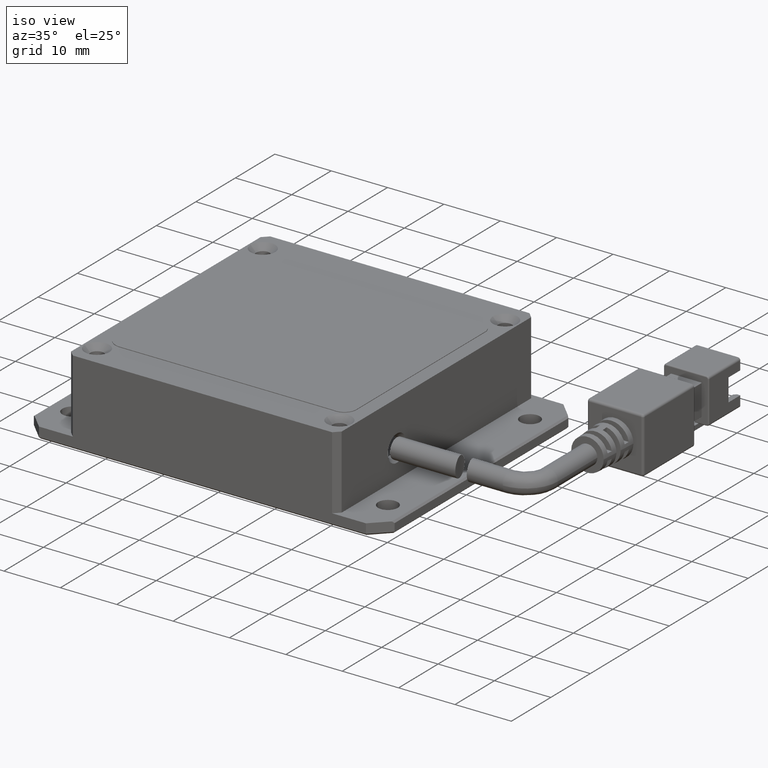
[diagram: clean part render]
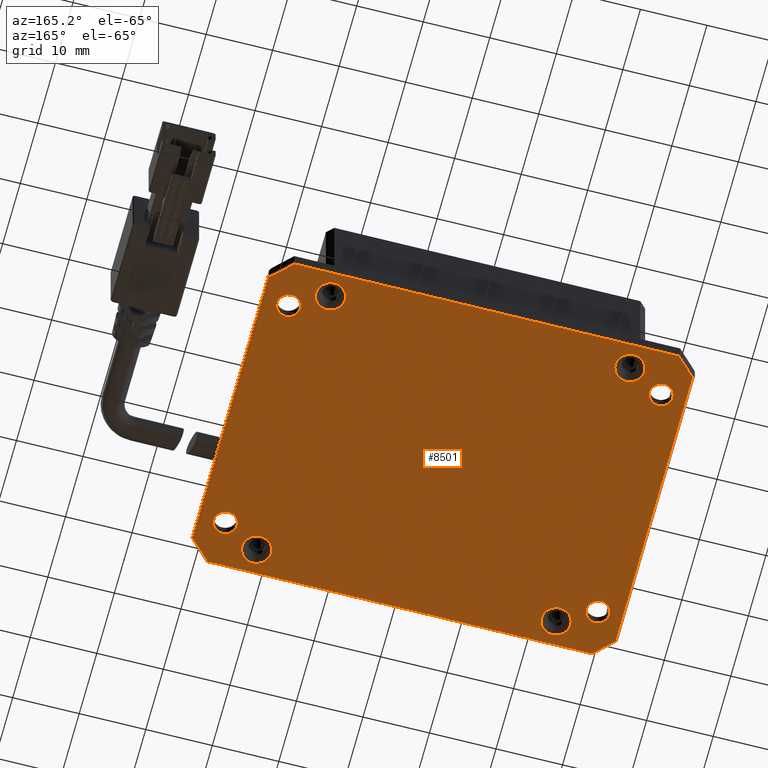
[diagram: tour spotlight — one face highlighted and labeled with its STEP entity id]
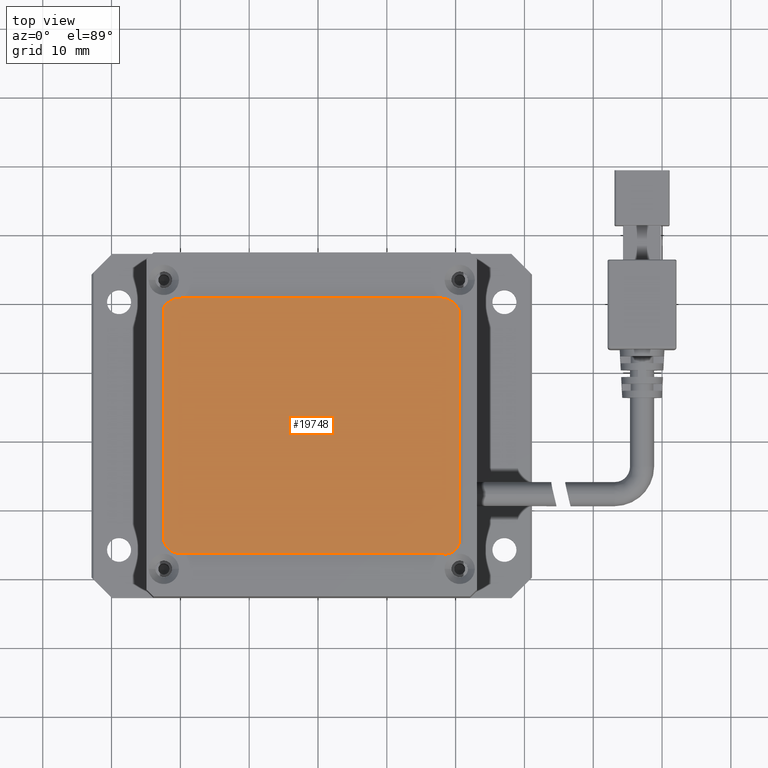
[diagram: tour spotlight — one face highlighted and labeled with its STEP entity id]
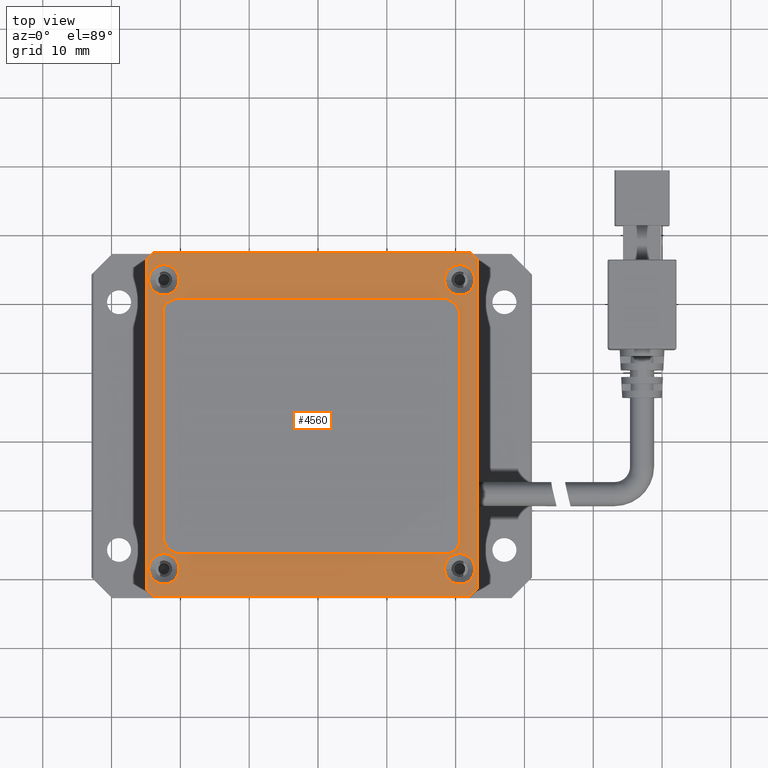
[diagram: tour spotlight — one face highlighted and labeled with its STEP entity id]
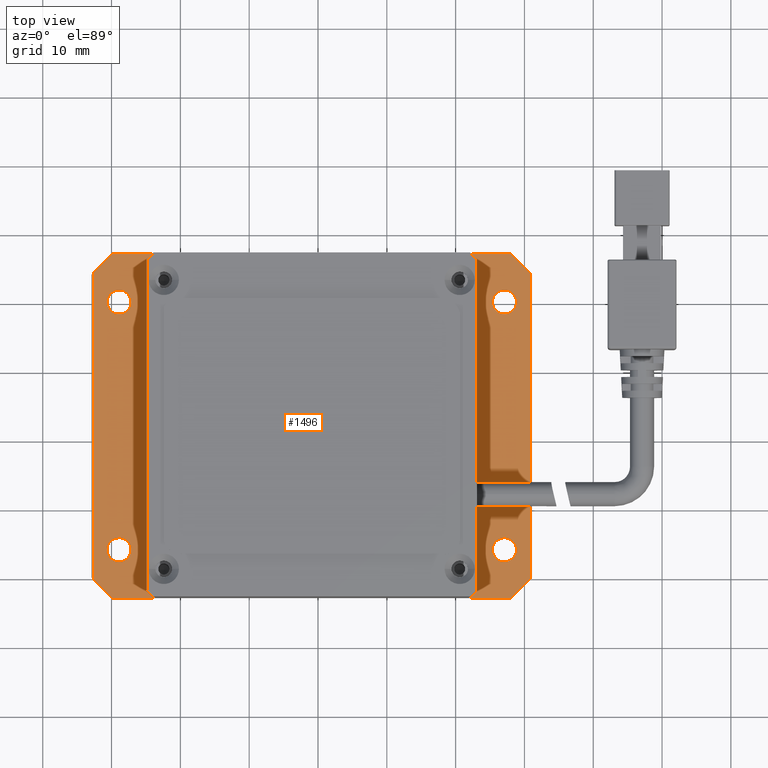
[diagram: tour spotlight — one face highlighted and labeled with its STEP entity id]
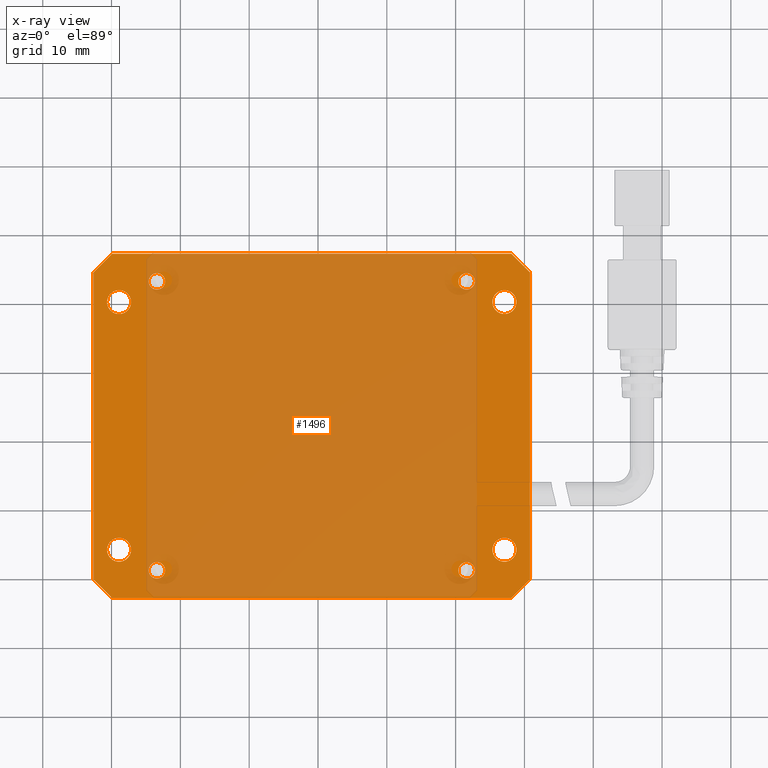
[diagram: x-ray of the same camera — body ghosted, this tour face saturated]
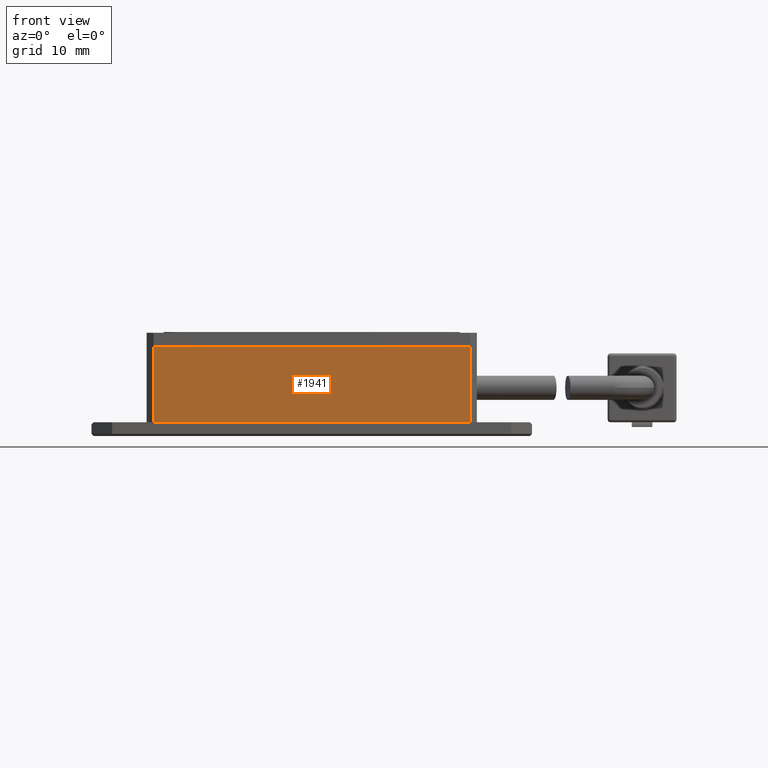
[diagram: tour spotlight — one face highlighted and labeled with its STEP entity id]
A machine part: a face-by-face anatomy tour. The part has 476 B-rep faces; the first image is the clean iso view, then the 5 largest visible faces are spotlighted one at a time (largest first), each with its STEP entity span.

Face 1 — auxiliary view, entity #8501. In plain terms, the highlighted planar face has unit normal (0, 0, 1).
Definition (entity closure, byte-faithful):
#52 = LINE ( 'NONE', #13636, #3796 ) ;
#208 = CARTESIAN_POINT ( 'NONE',  ( -23.40683466972126700, -18.70904925544097000, -2.000000000025858000 ) ) ;
#306 = EDGE_CURVE ( 'NONE', #17748, #4427, #394, .T. ) ;
#325 = CARTESIAN_POINT ( 'NONE',  ( 30.79316533027870100, 24.16668667584710000, -2.000000000016307800 ) ) ;
#362 = AXIS2_PLACEMENT_3D ( 'NONE', #18655, #9256, #20245 ) ;
#394 = CIRCLE ( 'NONE', #10278, 2.199999999962086500 ) ;
#424 = AXIS2_PLACEMENT_3D ( 'NONE', #7256, #18229, #8809 ) ;
#449 = CARTESIAN_POINT ( 'NONE',  ( -32.60683466972127300, 24.16668667584708500, -2.000000000016314900 ) ) ;
#476 = DIRECTION ( 'NONE',  ( -0.0000000000000000000, -0.0000000000000000000, 1.000000000000000000 ) ) ;
#586 = ORIENTED_EDGE ( 'NONE', *, *, #16952, .T. ) ;
#704 = EDGE_CURVE ( 'NONE', #12829, #11307, #9315, .T. ) ;
#848 = ORIENTED_EDGE ( 'NONE', *, *, #2776, .F. ) ;
#942 = ORIENTED_EDGE ( 'NONE', *, *, #7646, .T. ) ;
#1101 = VERTEX_POINT ( 'NONE', #13970 ) ;
#1133 = CARTESIAN_POINT ( 'NONE',  ( 28.84316533027870800, 20.29095074455904100, -2.000000000016308700 ) ) ;
#1170 = AXIS2_PLACEMENT_3D ( 'NONE', #3265, #14350, #4895 ) ;
#1220 = VERTEX_POINT ( 'NONE', #8952 ) ;
#1666 = EDGE_CURVE ( 'NONE', #19796, #20140, #15402, .T. ) ;
#1813 = DIRECTION ( 'NONE',  ( -1.000000000000000000, 0.0000000000000000000, 0.0000000000000000000 ) ) ;
#1895 = CIRCLE ( 'NONE', #1170, 1.749999999999987600 ) ;
#1959 = ORIENTED_EDGE ( 'NONE', *, *, #3929, .T. ) ;
#2071 = CIRCLE ( 'NONE', #15971, 2.199999999978004400 ) ;
#2105 = VERTEX_POINT ( 'NONE', #7425 ) ;
#2111 = CARTESIAN_POINT ( 'NONE',  ( 23.79316533024081800, -18.70904925544097000, -2.000000000025858000 ) ) ;
#2182 = CARTESIAN_POINT ( 'NONE',  ( 21.59316533027873300, -18.70904925544097000, -2.000000000025858000 ) ) ;
#2346 = FACE_BOUND ( 'NONE', #3950, .T. ) ;
#2472 = EDGE_LOOP ( 'NONE', ( #12041, #3965 ) ) ;
#2494 = EDGE_CURVE ( 'NONE', #1220, #10790, #15875, .T. ) ;
#2610 = CIRCLE ( 'NONE', #13498, 1.749999999999987600 ) ;
#2627 = VERTEX_POINT ( 'NONE', #8356 ) ;
#2671 = ORIENTED_EDGE ( 'NONE', *, *, #7029, .T. ) ;
#2733 = EDGE_LOOP ( 'NONE', ( #14063, #9563 ) ) ;
#2776 = EDGE_CURVE ( 'NONE', #14739, #2627, #17001, .T. ) ;
#2901 = CARTESIAN_POINT ( 'NONE',  ( 25.34316533027873300, 20.29095074455904100, -2.000000000016308700 ) ) ;
#3004 = ORIENTED_EDGE ( 'NONE', *, *, #1666, .T. ) ;
#3131 = EDGE_CURVE ( 'NONE', #14739, #11421, #19399, .T. ) ;
#3140 = EDGE_LOOP ( 'NONE', ( #13296, #3004 ) ) ;
#3207 = CARTESIAN_POINT ( 'NONE',  ( 21.59316533027873300, 23.29095074455903000, -2.000000000025858000 ) ) ;
#3265 = CARTESIAN_POINT ( 'NONE',  ( -28.90683466972129900, -15.70904925544096300, -2.000000000016309600 ) ) ;
#3535 = EDGE_CURVE ( 'NONE', #19733, #7327, #2610, .T. ) ;
#3784 = DIRECTION ( 'NONE',  ( -1.000000000000000000, 0.0000000000000000000, 0.0000000000000000000 ) ) ;
#3796 = VECTOR ( 'NONE', #16788, 1000.000000000000100 ) ;
#3911 = LINE ( 'NONE', #8605, #15063 ) ;
#3929 = EDGE_CURVE ( 'NONE', #7327, #19733, #13993, .T. ) ;
#3950 = EDGE_LOOP ( 'NONE', ( #15474, #586 ) ) ;
#3965 = ORIENTED_EDGE ( 'NONE', *, *, #2494, .T. ) ;
#4242 = DIRECTION ( 'NONE',  ( -0.0000000000000000000, -0.0000000000000000000, 1.000000000000000000 ) ) ;
#4341 = VECTOR ( 'NONE', #9961, 1000.000000000000000 ) ;
#4427 = VERTEX_POINT ( 'NONE', #20499 ) ;
#4447 = CARTESIAN_POINT ( 'NONE',  ( -25.60683466969927100, -18.70904925544097000, -2.000000000025858000 ) ) ;
#4640 = CIRCLE ( 'NONE', #16461, 1.749999999999987600 ) ;
#4833 = DIRECTION ( 'NONE',  ( -1.000000000000000000, 0.0000000000000000000, 0.0000000000000000000 ) ) ;
#4895 = DIRECTION ( 'NONE',  ( -1.000000000000000000, 0.0000000000000000000, 0.0000000000000000000 ) ) ;
#4961 = EDGE_CURVE ( 'NONE', #8686, #5851, #20062, .T. ) ;
#4962 = DIRECTION ( 'NONE',  ( -0.0000000000000000000, -0.0000000000000000000, 1.000000000000000000 ) ) ;
#5011 = CARTESIAN_POINT ( 'NONE',  ( 27.09316533027871900, 20.29095074455904100, -2.000000000016308700 ) ) ;
#5028 = CARTESIAN_POINT ( 'NONE',  ( -28.90683466972127700, 20.29095074455904100, -2.000000000016308700 ) ) ;
#5114 = CARTESIAN_POINT ( 'NONE',  ( 31.09316533027871900, -22.40904925544095500, -2.000000000016308300 ) ) ;
#5199 = VERTEX_POINT ( 'NONE', #8629 ) ;
#5315 = CIRCLE ( 'NONE', #17444, 1.749999999999987600 ) ;
#5356 = VERTEX_POINT ( 'NONE', #7681 ) ;
#5590 = EDGE_CURVE ( 'NONE', #7657, #11811, #15267, .T. ) ;
#5851 = VERTEX_POINT ( 'NONE', #1133 ) ;
#5887 = EDGE_LOOP ( 'NONE', ( #13599, #1959 ) ) ;
#5935 = ORIENTED_EDGE ( 'NONE', *, *, #18979, .T. ) ;
#6241 = CARTESIAN_POINT ( 'NONE',  ( -28.90683466972127700, 20.29095074455904100, -2.000000000016308700 ) ) ;
#6292 = EDGE_CURVE ( 'NONE', #10925, #2627, #52, .T. ) ;
#6595 = DIRECTION ( 'NONE',  ( -1.000000000000000000, 0.0000000000000000000, 0.0000000000000000000 ) ) ;
#6625 = DIRECTION ( 'NONE',  ( -1.000000000000000000, 0.0000000000000000000, 0.0000000000000000000 ) ) ;
#6644 = FACE_BOUND ( 'NONE', #5887, .T. ) ;
#6737 = DIRECTION ( 'NONE',  ( -0.0000000000000000000, -0.0000000000000000000, 1.000000000000000000 ) ) ;
#6783 = AXIS2_PLACEMENT_3D ( 'NONE', #5028, #16064, #6625 ) ;
#6970 = EDGE_CURVE ( 'NONE', #10790, #1220, #17705, .T. ) ;
#6981 = LINE ( 'NONE', #9921, #11158 ) ;
#7029 = EDGE_CURVE ( 'NONE', #19654, #1101, #4640, .T. ) ;
#7256 = CARTESIAN_POINT ( 'NONE',  ( 31.09316533027871900, 27.29095074455903400, -2.000000000016308300 ) ) ;
#7289 = CARTESIAN_POINT ( 'NONE',  ( 25.34316533027873000, -15.70904925544095600, -2.000000000016311800 ) ) ;
#7304 = CARTESIAN_POINT ( 'NONE',  ( 21.59316533027873300, -18.70904925544097000, -2.000000000025858000 ) ) ;
#7327 = VERTEX_POINT ( 'NONE', #13741 ) ;
#7375 = ORIENTED_EDGE ( 'NONE', *, *, #16358, .T. ) ;
#7425 = CARTESIAN_POINT ( 'NONE',  ( -27.15683466972129200, 20.29095074455904100, -2.000000000016308700 ) ) ;
#7494 = CARTESIAN_POINT ( 'NONE',  ( 27.09316533027871500, -15.70904925544095600, -2.000000000016311800 ) ) ;
#7646 = EDGE_CURVE ( 'NONE', #8360, #10925, #13513, .T. ) ;
#7654 = CARTESIAN_POINT ( 'NONE',  ( 30.79316533027870100, 27.29095074455903400, -2.000000000016308300 ) ) ;
#7657 = VERTEX_POINT ( 'NONE', #8310 ) ;
#7681 = CARTESIAN_POINT ( 'NONE',  ( 27.96890126156676400, 26.99095074455901200, -2.000000000016308300 ) ) ;
#7717 = EDGE_CURVE ( 'NONE', #20140, #19796, #2071, .T. ) ;
#7735 = DIRECTION ( 'NONE',  ( -1.000000000000000000, 0.0000000000000000000, 0.0000000000000000000 ) ) ;
#7792 = DIRECTION ( 'NONE',  ( -0.0000000000000000000, -0.0000000000000000000, 1.000000000000000000 ) ) ;
#7810 = CARTESIAN_POINT ( 'NONE',  ( 21.59316533027873300, 23.29095074455903000, -2.000000000025858000 ) ) ;
#7813 = DIRECTION ( 'NONE',  ( -1.000000000000000000, 0.0000000000000000000, 0.0000000000000000000 ) ) ;
#8309 = AXIS2_PLACEMENT_3D ( 'NONE', #14403, #4962, #15992 ) ;
#8310 = CARTESIAN_POINT ( 'NONE',  ( 19.39316533031664500, -18.70904925544097000, -2.000000000025858000 ) ) ;
#8337 = DIRECTION ( 'NONE',  ( 0.7071067811865465700, 0.7071067811865483500, 8.686402570749298000E-016 ) ) ;
#8339 = DIRECTION ( 'NONE',  ( 0.0000000000000000000, 1.000000000000000000, 0.0000000000000000000 ) ) ;
#8356 = CARTESIAN_POINT ( 'NONE',  ( -32.60683466972125900, -19.58478518672901100, -2.000000000016308300 ) ) ;
#8360 = VERTEX_POINT ( 'NONE', #9087 ) ;
#8472 = ORIENTED_EDGE ( 'NONE', *, *, #13928, .T. ) ;
#8501 = ADVANCED_FACE ( 'NONE', ( #19172, #15012, #16006, #10806, #6644, #2346, #18675, #14519, #10297 ), #18149, .F. ) ;
#8556 = AXIS2_PLACEMENT_3D ( 'NONE', #3207, #14299, #4833 ) ;
#8605 = CARTESIAN_POINT ( 'NONE',  ( 27.96890126156676400, 26.99095074455901200, -2.000000000016307400 ) ) ;
#8629 = CARTESIAN_POINT ( 'NONE',  ( -30.65683466972126700, 20.29095074455904100, -2.000000000016308700 ) ) ;
#8686 = VERTEX_POINT ( 'NONE', #2901 ) ;
#8809 = DIRECTION ( 'NONE',  ( 1.000000000000000000, 0.0000000000000000000, 0.0000000000000000000 ) ) ;
#8897 = DIRECTION ( 'NONE',  ( -1.000000000000000000, 0.0000000000000000000, 0.0000000000000000000 ) ) ;
#8952 = CARTESIAN_POINT ( 'NONE',  ( -21.20683466974326200, -18.70904925544097000, -2.000000000025858000 ) ) ;
#9005 = CARTESIAN_POINT ( 'NONE',  ( -21.20683466974326200, 23.29095074455903000, -2.000000000025858000 ) ) ;
#9041 = DIRECTION ( 'NONE',  ( -1.000000000000000000, 0.0000000000000000000, 0.0000000000000000000 ) ) ;
#9087 = CARTESIAN_POINT ( 'NONE',  ( 27.96890126156677100, -22.40904925544095900, -2.000000000016307000 ) ) ;
#9256 = DIRECTION ( 'NONE',  ( -0.0000000000000000000, -0.0000000000000000000, 1.000000000000000000 ) ) ;
#9270 = CARTESIAN_POINT ( 'NONE',  ( -32.60683466972125900, 24.16668667584710000, -2.000000000016310100 ) ) ;
#9315 = LINE ( 'NONE', #7654, #17683 ) ;
#9563 = ORIENTED_EDGE ( 'NONE', *, *, #306, .T. ) ;
#9921 = CARTESIAN_POINT ( 'NONE',  ( 30.79316533027869700, -19.58478518672901800, -2.000000000016301200 ) ) ;
#9961 = DIRECTION ( 'NONE',  ( 1.000000000000000000, -0.0000000000000000000, -0.0000000000000000000 ) ) ;
#9977 = CARTESIAN_POINT ( 'NONE',  ( -23.40683466972126700, 23.29095074455903000, -2.000000000025858000 ) ) ;
#10209 = AXIS2_PLACEMENT_3D ( 'NONE', #6241, #17230, #7813 ) ;
#10236 = CARTESIAN_POINT ( 'NONE',  ( -29.78257060100936800, 26.99095074455901900, -2.000000000016308700 ) ) ;
#10278 = AXIS2_PLACEMENT_3D ( 'NONE', #7810, #7792, #7735 ) ;
#10297 = FACE_OUTER_BOUND ( 'NONE', #17801, .T. ) ;
#10354 = EDGE_CURVE ( 'NONE', #2105, #5199, #17579, .T. ) ;
#10486 = AXIS2_PLACEMENT_3D ( 'NONE', #7304, #18283, #8897 ) ;
#10635 = ORIENTED_EDGE ( 'NONE', *, *, #5590, .T. ) ;
#10667 = CARTESIAN_POINT ( 'NONE',  ( 23.79316533024081800, 23.29095074455903000, -2.000000000025858000 ) ) ;
#10790 = VERTEX_POINT ( 'NONE', #4447 ) ;
#10806 = FACE_BOUND ( 'NONE', #2733, .T. ) ;
#10925 = VERTEX_POINT ( 'NONE', #11212 ) ;
#11050 = VECTOR ( 'NONE', #8337, 1000.000000000000100 ) ;
#11158 = VECTOR ( 'NONE', #11467, 1000.000000000000100 ) ;
#11212 = CARTESIAN_POINT ( 'NONE',  ( -29.78257060100931100, -22.40904925544095500, -2.000000000016308300 ) ) ;
#11307 = VERTEX_POINT ( 'NONE', #325 ) ;
#11342 = DIRECTION ( 'NONE',  ( -0.0000000000000000000, -0.0000000000000000000, 1.000000000000000000 ) ) ;
#11421 = VERTEX_POINT ( 'NONE', #10236 ) ;
#11467 = DIRECTION ( 'NONE',  ( -0.7071067811865460200, -0.7071067811865490200, -4.343201285374599200E-016 ) ) ;
#11573 = AXIS2_PLACEMENT_3D ( 'NONE', #2182, #13279, #3784 ) ;
#11606 = DIRECTION ( 'NONE',  ( -1.000000000000000000, 0.0000000000000000000, 0.0000000000000000000 ) ) ;
#11811 = VERTEX_POINT ( 'NONE', #2111 ) ;
#12041 = ORIENTED_EDGE ( 'NONE', *, *, #6970, .T. ) ;
#12775 = EDGE_CURVE ( 'NONE', #12829, #8360, #6981, .T. ) ;
#12823 = VECTOR ( 'NONE', #15156, 1000.000000000000000 ) ;
#12829 = VERTEX_POINT ( 'NONE', #13171 ) ;
#13171 = CARTESIAN_POINT ( 'NONE',  ( 30.79316533027870100, -19.58478518672901800, -2.000000000016306500 ) ) ;
#13275 = DIRECTION ( 'NONE',  ( 0.7071067811865511300, -0.7071067811865440200, 2.171600642687311200E-016 ) ) ;
#13279 = DIRECTION ( 'NONE',  ( -0.0000000000000000000, -0.0000000000000000000, 1.000000000000000000 ) ) ;
#13296 = ORIENTED_EDGE ( 'NONE', *, *, #7717, .T. ) ;
#13321 = AXIS2_PLACEMENT_3D ( 'NONE', #208, #11342, #1813 ) ;
#13498 = AXIS2_PLACEMENT_3D ( 'NONE', #13713, #4242, #15315 ) ;
#13513 = LINE ( 'NONE', #5114, #20373 ) ;
#13599 = ORIENTED_EDGE ( 'NONE', *, *, #3535, .T. ) ;
#13636 = CARTESIAN_POINT ( 'NONE',  ( -29.78257060100930400, -22.40904925544095500, -2.000000000016308300 ) ) ;
#13713 = CARTESIAN_POINT ( 'NONE',  ( 27.09316533027871500, -15.70904925544095600, -2.000000000016311800 ) ) ;
#13741 = CARTESIAN_POINT ( 'NONE',  ( 28.84316533027870500, -15.70904925544095600, -2.000000000016311800 ) ) ;
#13848 = ORIENTED_EDGE ( 'NONE', *, *, #19253, .T. ) ;
#13928 = EDGE_CURVE ( 'NONE', #1101, #19654, #1895, .T. ) ;
#13970 = CARTESIAN_POINT ( 'NONE',  ( -27.15683466972130900, -15.70904925544096300, -2.000000000016309600 ) ) ;
#13993 = CIRCLE ( 'NONE', #20068, 1.749999999999987600 ) ;
#14063 = ORIENTED_EDGE ( 'NONE', *, *, #20234, .T. ) ;
#14299 = DIRECTION ( 'NONE',  ( -0.0000000000000000000, -0.0000000000000000000, 1.000000000000000000 ) ) ;
#14350 = DIRECTION ( 'NONE',  ( -0.0000000000000000000, -0.0000000000000000000, 1.000000000000000000 ) ) ;
#14403 = CARTESIAN_POINT ( 'NONE',  ( -23.40683466972126700, -18.70904925544097000, -2.000000000025858000 ) ) ;
#14519 = FACE_BOUND ( 'NONE', #17955, .T. ) ;
#14739 = VERTEX_POINT ( 'NONE', #9270 ) ;
#15012 = FACE_BOUND ( 'NONE', #3140, .T. ) ;
#15063 = VECTOR ( 'NONE', #13275, 1000.000000000000000 ) ;
#15156 = DIRECTION ( 'NONE',  ( -0.0000000000000000000, -1.000000000000000000, -0.0000000000000000000 ) ) ;
#15267 = CIRCLE ( 'NONE', #11573, 2.199999999962086500 ) ;
#15315 = DIRECTION ( 'NONE',  ( -1.000000000000000000, 0.0000000000000000000, 0.0000000000000000000 ) ) ;
#15402 = CIRCLE ( 'NONE', #20109, 2.199999999978004400 ) ;
#15474 = ORIENTED_EDGE ( 'NONE', *, *, #4961, .T. ) ;
#15875 = CIRCLE ( 'NONE', #8309, 2.199999999978004400 ) ;
#15971 = AXIS2_PLACEMENT_3D ( 'NONE', #9977, #476, #11606 ) ;
#15992 = DIRECTION ( 'NONE',  ( -1.000000000000000000, 0.0000000000000000000, 0.0000000000000000000 ) ) ;
#16006 = FACE_BOUND ( 'NONE', #19984, .T. ) ;
#16039 = DIRECTION ( 'NONE',  ( -0.0000000000000000000, -0.0000000000000000000, 1.000000000000000000 ) ) ;
#16064 = DIRECTION ( 'NONE',  ( -0.0000000000000000000, -0.0000000000000000000, 1.000000000000000000 ) ) ;
#16151 = CARTESIAN_POINT ( 'NONE',  ( -28.90683466972129900, -15.70904925544096300, -2.000000000016309600 ) ) ;
#16358 = EDGE_CURVE ( 'NONE', #11421, #5356, #16418, .T. ) ;
#16418 = LINE ( 'NONE', #19385, #4341 ) ;
#16452 = ORIENTED_EDGE ( 'NONE', *, *, #704, .F. ) ;
#16461 = AXIS2_PLACEMENT_3D ( 'NONE', #16151, #6737, #17726 ) ;
#16739 = ORIENTED_EDGE ( 'NONE', *, *, #12775, .T. ) ;
#16788 = DIRECTION ( 'NONE',  ( -0.7071067811865493500, 0.7071067811865455700, 2.171600642687295400E-016 ) ) ;
#16952 = EDGE_CURVE ( 'NONE', #5851, #8686, #5315, .T. ) ;
#16971 = CARTESIAN_POINT ( 'NONE',  ( -23.40683466972126700, 23.29095074455903000, -2.000000000025858000 ) ) ;
#17001 = LINE ( 'NONE', #19791, #12823 ) ;
#17010 = EDGE_LOOP ( 'NONE', ( #2671, #8472 ) ) ;
#17045 = DIRECTION ( 'NONE',  ( -0.0000000000000000000, -0.0000000000000000000, 1.000000000000000000 ) ) ;
#17111 = DIRECTION ( 'NONE',  ( -1.000000000000000000, 0.0000000000000000000, 0.0000000000000000000 ) ) ;
#17216 = CIRCLE ( 'NONE', #8556, 2.199999999962086500 ) ;
#17230 = DIRECTION ( 'NONE',  ( -0.0000000000000000000, -0.0000000000000000000, 1.000000000000000000 ) ) ;
#17444 = AXIS2_PLACEMENT_3D ( 'NONE', #5011, #16039, #6595 ) ;
#17579 = CIRCLE ( 'NONE', #6783, 1.749999999999987600 ) ;
#17583 = DIRECTION ( 'NONE',  ( -1.000000000000000000, 0.0000000000000000000, 0.0000000000000000000 ) ) ;
#17683 = VECTOR ( 'NONE', #8339, 1000.000000000000000 ) ;
#17705 = CIRCLE ( 'NONE', #13321, 2.199999999978004400 ) ;
#17726 = DIRECTION ( 'NONE',  ( -1.000000000000000000, 0.0000000000000000000, 0.0000000000000000000 ) ) ;
#17748 = VERTEX_POINT ( 'NONE', #10667 ) ;
#17801 = EDGE_LOOP ( 'NONE', ( #19659, #848, #19479, #7375, #18929, #16452, #16739, #942 ) ) ;
#17955 = EDGE_LOOP ( 'NONE', ( #5935, #20115 ) ) ;
#18007 = CIRCLE ( 'NONE', #10209, 1.749999999999987600 ) ;
#18065 = CARTESIAN_POINT ( 'NONE',  ( -30.65683466972128500, -15.70904925544096300, -2.000000000016309600 ) ) ;
#18149 = PLANE ( 'NONE',  #424 ) ;
#18229 = DIRECTION ( 'NONE',  ( 0.0000000000000000000, 0.0000000000000000000, 1.000000000000000000 ) ) ;
#18283 = DIRECTION ( 'NONE',  ( -0.0000000000000000000, -0.0000000000000000000, 1.000000000000000000 ) ) ;
#18468 = DIRECTION ( 'NONE',  ( -0.0000000000000000000, -0.0000000000000000000, 1.000000000000000000 ) ) ;
#18655 = CARTESIAN_POINT ( 'NONE',  ( 27.09316533027871900, 20.29095074455904100, -2.000000000016308700 ) ) ;
#18668 = CARTESIAN_POINT ( 'NONE',  ( -25.60683466969927100, 23.29095074455903000, -2.000000000025858000 ) ) ;
#18675 = FACE_BOUND ( 'NONE', #17010, .T. ) ;
#18929 = ORIENTED_EDGE ( 'NONE', *, *, #19604, .T. ) ;
#18979 = EDGE_CURVE ( 'NONE', #5199, #2105, #18007, .T. ) ;
#19172 = FACE_BOUND ( 'NONE', #2472, .T. ) ;
#19253 = EDGE_CURVE ( 'NONE', #11811, #7657, #19689, .T. ) ;
#19385 = CARTESIAN_POINT ( 'NONE',  ( 31.09316533027871900, 26.99095074455901900, -2.000000000016308300 ) ) ;
#19399 = LINE ( 'NONE', #449, #11050 ) ;
#19479 = ORIENTED_EDGE ( 'NONE', *, *, #3131, .T. ) ;
#19604 = EDGE_CURVE ( 'NONE', #5356, #11307, #3911, .T. ) ;
#19654 = VERTEX_POINT ( 'NONE', #18065 ) ;
#19659 = ORIENTED_EDGE ( 'NONE', *, *, #6292, .T. ) ;
#19689 = CIRCLE ( 'NONE', #10486, 2.199999999962086500 ) ;
#19733 = VERTEX_POINT ( 'NONE', #7289 ) ;
#19791 = CARTESIAN_POINT ( 'NONE',  ( -32.60683466972125900, 27.29095074455903400, -2.000000000016308300 ) ) ;
#19796 = VERTEX_POINT ( 'NONE', #9005 ) ;
#19984 = EDGE_LOOP ( 'NONE', ( #10635, #13848 ) ) ;
#20062 = CIRCLE ( 'NONE', #362, 1.749999999999987600 ) ;
#20068 = AXIS2_PLACEMENT_3D ( 'NONE', #7494, #18468, #9041 ) ;
#20109 = AXIS2_PLACEMENT_3D ( 'NONE', #16971, #17045, #17111 ) ;
#20115 = ORIENTED_EDGE ( 'NONE', *, *, #10354, .T. ) ;
#20140 = VERTEX_POINT ( 'NONE', #18668 ) ;
#20234 = EDGE_CURVE ( 'NONE', #4427, #17748, #17216, .T. ) ;
#20245 = DIRECTION ( 'NONE',  ( -1.000000000000000000, 0.0000000000000000000, 0.0000000000000000000 ) ) ;
#20373 = VECTOR ( 'NONE', #17583, 1000.000000000000000 ) ;
#20499 = CARTESIAN_POINT ( 'NONE',  ( 19.39316533031664500, 23.29095074455903000, -2.000000000025858000 ) ) ;

Face 2 — top view, entity #19748. In plain terms, the highlighted planar face has unit normal (-0, 0, -1).
Definition (entity closure, byte-faithful):
#134 = CARTESIAN_POINT ( 'NONE',  ( 18.00368343727945600, 20.64631015631383800, 13.09999999998369100 ) ) ;
#237 = CARTESIAN_POINT ( 'NONE',  ( -19.94927597337307600, 17.62137133524542800, 13.09999999998369100 ) ) ;
#592 = CARTESIAN_POINT ( 'NONE',  ( 18.00368343727945900, -16.50904925542707200, 13.09999999998369100 ) ) ;
#595 = DIRECTION ( 'NONE',  ( 0.0000000000000000000, 0.0000000000000000000, 1.000000000000000000 ) ) ;
#653 = DIRECTION ( 'NONE',  ( 0.0000000000000000000, 0.0000000000000000000, 1.000000000000000000 ) ) ;
#1330 = CARTESIAN_POINT ( 'NONE',  ( -19.66498328437758800, -16.50904925542707600, 13.09999999998369100 ) ) ;
#1436 = EDGE_CURVE ( 'NONE', #20397, #12048, #9007, .T. ) ;
#1534 = DIRECTION ( 'NONE',  ( -0.0000000000000000000, -1.000000000000000000, -0.0000000000000000000 ) ) ;
#1601 = VECTOR ( 'NONE', #17983, 1000.000000000000000 ) ;
#1848 = DIRECTION ( 'NONE',  ( -1.000000000000000000, 0.0000000000000000000, 0.0000000000000000000 ) ) ;
#2042 = AXIS2_PLACEMENT_3D ( 'NONE', #10160, #653, #11765 ) ;
#2154 = CARTESIAN_POINT ( 'NONE',  ( 20.59316533027872600, -14.67035368407021800, 13.09999999998369100 ) ) ;
#2162 = CIRCLE ( 'NONE', #2243, 3.025643677028646600 ) ;
#2243 = AXIS2_PLACEMENT_3D ( 'NONE', #237, #11379, #1848 ) ;
#2966 = ORIENTED_EDGE ( 'NONE', *, *, #20423, .T. ) ;
#3033 = EDGE_CURVE ( 'NONE', #5904, #11406, #19646, .T. ) ;
#4199 = DIRECTION ( 'NONE',  ( 0.0000000000000000000, 0.0000000000000000000, 1.000000000000000000 ) ) ;
#4842 = ORIENTED_EDGE ( 'NONE', *, *, #19443, .T. ) ;
#5042 = CARTESIAN_POINT ( 'NONE',  ( -19.88397062032537500, 20.64631015631383800, 13.09999999998369100 ) ) ;
#5904 = VERTEX_POINT ( 'NONE', #1330 ) ;
#6816 = EDGE_CURVE ( 'NONE', #17689, #7611, #6901, .T. ) ;
#6901 = CIRCLE ( 'NONE', #12654, 2.821431938662586300 ) ;
#7126 = VECTOR ( 'NONE', #11282, 1000.000000000000000 ) ;
#7146 = EDGE_CURVE ( 'NONE', #12614, #17689, #14762, .T. ) ;
#7360 = DIRECTION ( 'NONE',  ( -0.0000000000000000000, 0.0000000000000000000, -1.000000000000000000 ) ) ;
#7611 = VERTEX_POINT ( 'NONE', #134 ) ;
#8406 = FACE_OUTER_BOUND ( 'NONE', #18521, .T. ) ;
#8816 = CIRCLE ( 'NONE', #13442, 2.152582791056338400 ) ;
#9007 = LINE ( 'NONE', #9676, #16877 ) ;
#9344 = AXIS2_PLACEMENT_3D ( 'NONE', #16778, #7360, #18334 ) ;
#9537 = DIRECTION ( 'NONE',  ( -1.000000000000000000, -0.0000000000000000000, -0.0000000000000000000 ) ) ;
#9676 = CARTESIAN_POINT ( 'NONE',  ( -22.40683466972126700, -14.67035368407021800, 13.09999999998369100 ) ) ;
#10119 = CARTESIAN_POINT ( 'NONE',  ( 18.45703195761590700, -14.40474704532020500, 13.09999999998369100 ) ) ;
#10160 = CARTESIAN_POINT ( 'NONE',  ( -19.88397062032537500, -13.87193816601501000, 13.09999999998369100 ) ) ;
#10557 = EDGE_CURVE ( 'NONE', #12048, #5904, #17324, .T. ) ;
#10905 = EDGE_CURVE ( 'NONE', #7611, #17510, #16545, .T. ) ;
#10974 = CARTESIAN_POINT ( 'NONE',  ( 20.59316533027872600, -14.67035368407021800, 13.09999999998369100 ) ) ;
#11282 = DIRECTION ( 'NONE',  ( 1.000000000000000000, 0.0000000000000000000, 0.0000000000000000000 ) ) ;
#11379 = DIRECTION ( 'NONE',  ( 0.0000000000000000000, 0.0000000000000000000, 1.000000000000000000 ) ) ;
#11406 = VERTEX_POINT ( 'NONE', #592 ) ;
#11720 = DIRECTION ( 'NONE',  ( 1.000000000000000000, 0.0000000000000000000, 0.0000000000000000000 ) ) ;
#11765 = DIRECTION ( 'NONE',  ( -1.000000000000000000, 0.0000000000000000000, 0.0000000000000000000 ) ) ;
#12048 = VERTEX_POINT ( 'NONE', #18494 ) ;
#12374 = VECTOR ( 'NONE', #9537, 1000.000000000000000 ) ;
#12614 = VERTEX_POINT ( 'NONE', #10974 ) ;
#12654 = AXIS2_PLACEMENT_3D ( 'NONE', #13675, #4199, #15263 ) ;
#12974 = ORIENTED_EDGE ( 'NONE', *, *, #3033, .T. ) ;
#13442 = AXIS2_PLACEMENT_3D ( 'NONE', #10119, #595, #11720 ) ;
#13675 = CARTESIAN_POINT ( 'NONE',  ( 17.88267781039737200, 17.82747425779683000, 13.09999999998369100 ) ) ;
#14762 = LINE ( 'NONE', #2154, #1601 ) ;
#15147 = PLANE ( 'NONE',  #9344 ) ;
#15263 = DIRECTION ( 'NONE',  ( -1.000000000000000000, 0.0000000000000000000, 0.0000000000000000000 ) ) ;
#15310 = CARTESIAN_POINT ( 'NONE',  ( 20.59316533027872600, 18.61088704111909600, 13.09999999998369100 ) ) ;
#15519 = ORIENTED_EDGE ( 'NONE', *, *, #6816, .T. ) ;
#15844 = CARTESIAN_POINT ( 'NONE',  ( -19.88397062032537500, 20.64631015631383800, 13.09999999998369100 ) ) ;
#16261 = ORIENTED_EDGE ( 'NONE', *, *, #1436, .T. ) ;
#16385 = CARTESIAN_POINT ( 'NONE',  ( -22.40683466972126700, 19.38628632309804800, 13.09999999998369100 ) ) ;
#16545 = LINE ( 'NONE', #15844, #12374 ) ;
#16778 = CARTESIAN_POINT ( 'NONE',  ( -19.94927597337307600, 17.62137133524542800, 13.09999999998369100 ) ) ;
#16877 = VECTOR ( 'NONE', #1534, 1000.000000000000000 ) ;
#17003 = ORIENTED_EDGE ( 'NONE', *, *, #7146, .T. ) ;
#17324 = CIRCLE ( 'NONE', #2042, 2.646187890382241600 ) ;
#17510 = VERTEX_POINT ( 'NONE', #5042 ) ;
#17689 = VERTEX_POINT ( 'NONE', #15310 ) ;
#17983 = DIRECTION ( 'NONE',  ( 0.0000000000000000000, 1.000000000000000000, 0.0000000000000000000 ) ) ;
#18271 = ORIENTED_EDGE ( 'NONE', *, *, #10557, .T. ) ;
#18334 = DIRECTION ( 'NONE',  ( -1.000000000000000000, 0.0000000000000000000, 0.0000000000000000000 ) ) ;
#18494 = CARTESIAN_POINT ( 'NONE',  ( -22.40683466972126700, -14.67035368407022000, 13.09999999998369100 ) ) ;
#18521 = EDGE_LOOP ( 'NONE', ( #4842, #16261, #18271, #12974, #2966, #17003, #15519, #18585 ) ) ;
#18585 = ORIENTED_EDGE ( 'NONE', *, *, #10905, .T. ) ;
#19101 = CARTESIAN_POINT ( 'NONE',  ( -19.66498328437758800, -16.50904925542707600, 13.09999999998369100 ) ) ;
#19443 = EDGE_CURVE ( 'NONE', #17510, #20397, #2162, .T. ) ;
#19646 = LINE ( 'NONE', #19101, #7126 ) ;
#19748 = ADVANCED_FACE ( 'NONE', ( #8406 ), #15147, .F. ) ;
#20397 = VERTEX_POINT ( 'NONE', #16385 ) ;
#20423 = EDGE_CURVE ( 'NONE', #11406, #12614, #8816, .T. ) ;

Face 3 — top view, entity #4560. In plain terms, the highlighted planar face has unit normal (0, 0, -1).
Definition (entity closure, byte-faithful):
#213 = ORIENTED_EDGE ( 'NONE', *, *, #5216, .F. ) ;
#245 = DIRECTION ( 'NONE',  ( 1.000000000000000000, 0.0000000000000000000, -0.0000000000000000000 ) ) ;
#287 = CARTESIAN_POINT ( 'NONE',  ( 22.79316533024216400, 23.29095074455901200, 12.99999999999324100 ) ) ;
#291 = DIRECTION ( 'NONE',  ( -0.7071067811865474600, 0.7071067811865476800, 0.0000000000000000000 ) ) ;
#349 = EDGE_LOOP ( 'NONE', ( #2122, #14815 ) ) ;
#399 = ORIENTED_EDGE ( 'NONE', *, *, #6568, .F. ) ;
#456 = CARTESIAN_POINT ( 'NONE',  ( -22.40683466972127000, -18.70904925544099100, 13.00000000005008400 ) ) ;
#570 = EDGE_CURVE ( 'NONE', #12344, #13413, #7621, .T. ) ;
#617 = VERTEX_POINT ( 'NONE', #12024 ) ;
#665 = DIRECTION ( 'NONE',  ( -0.0000000000000000000, -1.000000000000000000, -0.0000000000000000000 ) ) ;
#738 = DIRECTION ( 'NONE',  ( -1.000000000000000000, -0.0000000000000000000, -0.0000000000000000000 ) ) ;
#873 = EDGE_LOOP ( 'NONE', ( #6190, #16766 ) ) ;
#876 = ORIENTED_EDGE ( 'NONE', *, *, #18243, .F. ) ;
#965 = AXIS2_PLACEMENT_3D ( 'NONE', #1200, #12306, #2789 ) ;
#999 = CIRCLE ( 'NONE', #19721, 2.199999999963439600 ) ;
#1145 = DIRECTION ( 'NONE',  ( 0.7071067811865474600, -0.7071067811865474600, 0.0000000000000000000 ) ) ;
#1177 = AXIS2_PLACEMENT_3D ( 'NONE', #8937, #19924, #10487 ) ;
#1200 = CARTESIAN_POINT ( 'NONE',  ( 17.88267781039737200, 17.82747425779683000, 12.99999999998369100 ) ) ;
#1435 = EDGE_CURVE ( 'NONE', #7716, #13413, #4807, .T. ) ;
#1469 = CARTESIAN_POINT ( 'NONE',  ( -23.90683466972126300, -22.70904925544097400, 12.99999999998369100 ) ) ;
#1591 = VERTEX_POINT ( 'NONE', #4055 ) ;
#1604 = VECTOR ( 'NONE', #3934, 1000.000000000000000 ) ;
#1787 = EDGE_CURVE ( 'NONE', #19402, #1873, #999, .T. ) ;
#1846 = EDGE_CURVE ( 'NONE', #10541, #20258, #10715, .T. ) ;
#1873 = VERTEX_POINT ( 'NONE', #287 ) ;
#1879 = ORIENTED_EDGE ( 'NONE', *, *, #17600, .F. ) ;
#1948 = CARTESIAN_POINT ( 'NONE',  ( -24.90683466972127400, 26.29095074455902300, 12.99999999998369100 ) ) ;
#2038 = DIRECTION ( 'NONE',  ( 1.000000000000000000, 0.0000000000000000000, 0.0000000000000000000 ) ) ;
#2043 = EDGE_CURVE ( 'NONE', #18709, #9358, #9240, .T. ) ;
#2122 = ORIENTED_EDGE ( 'NONE', *, *, #18174, .F. ) ;
#2142 = LINE ( 'NONE', #5825, #14316 ) ;
#2269 = VECTOR ( 'NONE', #665, 1000.000000000000000 ) ;
#2312 = EDGE_LOOP ( 'NONE', ( #10594, #213, #9759, #12799, #8639, #15451, #4482, #1879 ) ) ;
#2561 = FACE_OUTER_BOUND ( 'NONE', #13495, .T. ) ;
#2789 = DIRECTION ( 'NONE',  ( -1.000000000000000000, 0.0000000000000000000, 0.0000000000000000000 ) ) ;
#2836 = EDGE_CURVE ( 'NONE', #12344, #4166, #11348, .T. ) ;
#2964 = CARTESIAN_POINT ( 'NONE',  ( 18.39316533031528400, 23.29095074455901200, 12.99999999999324100 ) ) ;
#3065 = FACE_BOUND ( 'NONE', #2312, .T. ) ;
#3120 = ORIENTED_EDGE ( 'NONE', *, *, #11718, .T. ) ;
#3250 = CIRCLE ( 'NONE', #1177, 2.200000000013913000 ) ;
#3346 = CIRCLE ( 'NONE', #5647, 2.152582791056338400 ) ;
#3381 = ORIENTED_EDGE ( 'NONE', *, *, #1435, .F. ) ;
#3417 = VECTOR ( 'NONE', #738, 1000.000000000000000 ) ;
#3547 = VECTOR ( 'NONE', #245, 1000.000000000000000 ) ;
#3934 = DIRECTION ( 'NONE',  ( -1.000000000000000000, -0.0000000000000000000, -0.0000000000000000000 ) ) ;
#4055 = CARTESIAN_POINT ( 'NONE',  ( -20.20683466970735900, 23.29095074455901200, 13.00000000005008400 ) ) ;
#4166 = VERTEX_POINT ( 'NONE', #20531 ) ;
#4298 = AXIS2_PLACEMENT_3D ( 'NONE', #9436, #20433, #11001 ) ;
#4302 = CARTESIAN_POINT ( 'NONE',  ( 18.39316533031528400, -18.70904925544099100, 12.99999999999324100 ) ) ;
#4347 = CIRCLE ( 'NONE', #965, 2.821431938662586300 ) ;
#4482 = ORIENTED_EDGE ( 'NONE', *, *, #8741, .F. ) ;
#4560 = ADVANCED_FACE ( 'NONE', ( #19861, #11013, #11525, #6848, #2561, #3065 ), #8266, .F. ) ;
#4573 = DIRECTION ( 'NONE',  ( 0.0000000000000000000, -0.0000000000000000000, 1.000000000000000000 ) ) ;
#4807 = LINE ( 'NONE', #4929, #12708 ) ;
#4897 = VECTOR ( 'NONE', #5495, 1000.000000000000000 ) ;
#4924 = DIRECTION ( 'NONE',  ( -0.7071067811865500200, -0.7071067811865451300, 0.0000000000000000000 ) ) ;
#4929 = CARTESIAN_POINT ( 'NONE',  ( -24.90683466972127400, 26.29095074455902300, 12.99999999998369100 ) ) ;
#5021 = CARTESIAN_POINT ( 'NONE',  ( -24.90683466972127400, 27.29095074455903000, 12.99999999998369100 ) ) ;
#5131 = VERTEX_POINT ( 'NONE', #11594 ) ;
#5146 = DIRECTION ( 'NONE',  ( 0.0000000000000000000, 0.0000000000000000000, -1.000000000000000000 ) ) ;
#5178 = CARTESIAN_POINT ( 'NONE',  ( 20.59316533027872600, 18.61088704111909600, 12.99999999998369100 ) ) ;
#5216 = EDGE_CURVE ( 'NONE', #8235, #18709, #7688, .T. ) ;
#5281 = CIRCLE ( 'NONE', #16402, 2.199999999963439600 ) ;
#5296 = EDGE_CURVE ( 'NONE', #16451, #1591, #13569, .T. ) ;
#5427 = CARTESIAN_POINT ( 'NONE',  ( -23.90683466972125300, 27.29095074455903000, 12.99999999998369100 ) ) ;
#5492 = VECTOR ( 'NONE', #4924, 1000.000000000000100 ) ;
#5495 = DIRECTION ( 'NONE',  ( 0.0000000000000000000, -1.000000000000000000, -0.0000000000000000000 ) ) ;
#5614 = EDGE_CURVE ( 'NONE', #7716, #14523, #17465, .T. ) ;
#5618 = DIRECTION ( 'NONE',  ( 0.0000000000000000000, -0.0000000000000000000, 1.000000000000000000 ) ) ;
#5647 = AXIS2_PLACEMENT_3D ( 'NONE', #8640, #19594, #10183 ) ;
#5723 = DIRECTION ( 'NONE',  ( 0.0000000000000000000, -0.0000000000000000000, 1.000000000000000000 ) ) ;
#5800 = CARTESIAN_POINT ( 'NONE',  ( 22.09316533027870500, -22.70904925544097700, 12.99999999998369100 ) ) ;
#5825 = CARTESIAN_POINT ( 'NONE',  ( -19.66498328437758800, -16.50904925542707600, 12.99999999998369100 ) ) ;
#6190 = ORIENTED_EDGE ( 'NONE', *, *, #1846, .F. ) ;
#6196 = VECTOR ( 'NONE', #291, 1000.000000000000000 ) ;
#6263 = DIRECTION ( 'NONE',  ( 0.7071067811865525700, 0.7071067811865425800, 0.0000000000000000000 ) ) ;
#6405 = DIRECTION ( 'NONE',  ( 0.0000000000000000000, -0.0000000000000000000, 1.000000000000000000 ) ) ;
#6568 = EDGE_CURVE ( 'NONE', #18474, #14523, #18223, .T. ) ;
#6671 = VECTOR ( 'NONE', #1145, 1000.000000000000100 ) ;
#6848 = FACE_BOUND ( 'NONE', #349, .T. ) ;
#6850 = ORIENTED_EDGE ( 'NONE', *, *, #2836, .F. ) ;
#7110 = CARTESIAN_POINT ( 'NONE',  ( 20.59316533027872600, -14.67035368407021800, 12.99999999998369100 ) ) ;
#7173 = LINE ( 'NONE', #19028, #10848 ) ;
#7278 = DIRECTION ( 'NONE',  ( 0.0000000000000000000, 0.0000000000000000000, 1.000000000000000000 ) ) ;
#7315 = VERTEX_POINT ( 'NONE', #18387 ) ;
#7450 = DIRECTION ( 'NONE',  ( 1.000000000000000000, 0.0000000000000000000, 0.0000000000000000000 ) ) ;
#7621 = LINE ( 'NONE', #5021, #1604 ) ;
#7688 = LINE ( 'NONE', #8695, #3417 ) ;
#7716 = VERTEX_POINT ( 'NONE', #1948 ) ;
#7786 = ORIENTED_EDGE ( 'NONE', *, *, #5296, .F. ) ;
#7985 = ORIENTED_EDGE ( 'NONE', *, *, #5614, .T. ) ;
#8235 = VERTEX_POINT ( 'NONE', #17875 ) ;
#8257 = DIRECTION ( 'NONE',  ( 0.0000000000000000000, -0.0000000000000000000, 1.000000000000000000 ) ) ;
#8266 = PLANE ( 'NONE',  #18109 ) ;
#8283 = CARTESIAN_POINT ( 'NONE',  ( -24.90683466972127400, -22.70904925544097400, 12.99999999998369100 ) ) ;
#8459 = VERTEX_POINT ( 'NONE', #8696 ) ;
#8639 = ORIENTED_EDGE ( 'NONE', *, *, #15927, .F. ) ;
#8640 = CARTESIAN_POINT ( 'NONE',  ( 18.45703195761590700, -14.40474704532020500, 12.99999999998369100 ) ) ;
#8695 = CARTESIAN_POINT ( 'NONE',  ( -19.88397062032537500, 20.64631015631383800, 12.99999999998369100 ) ) ;
#8696 = CARTESIAN_POINT ( 'NONE',  ( 23.09316533027872600, -21.70904925544096600, 12.99999999998369100 ) ) ;
#8698 = DIRECTION ( 'NONE',  ( 0.0000000000000000000, 1.000000000000000000, 0.0000000000000000000 ) ) ;
#8741 = EDGE_CURVE ( 'NONE', #7315, #9815, #17183, .T. ) ;
#8937 = CARTESIAN_POINT ( 'NONE',  ( -22.40683466972127000, 23.29095074455901200, 13.00000000005008400 ) ) ;
#9092 = DIRECTION ( 'NONE',  ( 0.0000000000000000000, -0.0000000000000000000, 1.000000000000000000 ) ) ;
#9240 = CIRCLE ( 'NONE', #10114, 3.025643677028646600 ) ;
#9312 = EDGE_CURVE ( 'NONE', #14008, #8235, #4347, .T. ) ;
#9358 = VERTEX_POINT ( 'NONE', #14030 ) ;
#9436 = CARTESIAN_POINT ( 'NONE',  ( -19.88397062032537500, -13.87193816601501000, 12.99999999998369100 ) ) ;
#9759 = ORIENTED_EDGE ( 'NONE', *, *, #9312, .F. ) ;
#9815 = VERTEX_POINT ( 'NONE', #12630 ) ;
#10103 = CARTESIAN_POINT ( 'NONE',  ( -24.60683466973518600, 23.29095074455901200, 13.00000000005008400 ) ) ;
#10114 = AXIS2_PLACEMENT_3D ( 'NONE', #16675, #7278, #18256 ) ;
#10183 = DIRECTION ( 'NONE',  ( 1.000000000000000000, 0.0000000000000000000, 0.0000000000000000000 ) ) ;
#10214 = CARTESIAN_POINT ( 'NONE',  ( -24.90683466972127400, -21.70904925544096300, 12.99999999998369100 ) ) ;
#10462 = EDGE_CURVE ( 'NONE', #20258, #10541, #13637, .T. ) ;
#10487 = DIRECTION ( 'NONE',  ( 1.000000000000000000, 0.0000000000000000000, 0.0000000000000000000 ) ) ;
#10541 = VERTEX_POINT ( 'NONE', #14828 ) ;
#10594 = ORIENTED_EDGE ( 'NONE', *, *, #2043, .F. ) ;
#10652 = CARTESIAN_POINT ( 'NONE',  ( 22.09316533027871200, 27.29095074455903000, 12.99999999998369100 ) ) ;
#10715 = CIRCLE ( 'NONE', #20388, 2.200000000013913000 ) ;
#10732 = LINE ( 'NONE', #13375, #2269 ) ;
#10848 = VECTOR ( 'NONE', #11207, 1000.000000000000000 ) ;
#11001 = DIRECTION ( 'NONE',  ( -1.000000000000000000, 0.0000000000000000000, 0.0000000000000000000 ) ) ;
#11013 = FACE_BOUND ( 'NONE', #873, .T. ) ;
#11207 = DIRECTION ( 'NONE',  ( 0.0000000000000000000, 1.000000000000000000, -0.0000000000000000000 ) ) ;
#11348 = LINE ( 'NONE', #10652, #6671 ) ;
#11424 = CARTESIAN_POINT ( 'NONE',  ( -23.90683466972126700, -22.70904925544097400, 12.99999999998369100 ) ) ;
#11462 = EDGE_CURVE ( 'NONE', #17713, #617, #17654, .T. ) ;
#11525 = FACE_BOUND ( 'NONE', #16938, .T. ) ;
#11576 = DIRECTION ( 'NONE',  ( 0.0000000000000000000, -0.0000000000000000000, 1.000000000000000000 ) ) ;
#11594 = CARTESIAN_POINT ( 'NONE',  ( 18.00368343727945900, -16.50904925542707200, 12.99999999998369100 ) ) ;
#11613 = CIRCLE ( 'NONE', #19219, 2.199999999963439600 ) ;
#11718 = EDGE_CURVE ( 'NONE', #18474, #18898, #15684, .T. ) ;
#12024 = CARTESIAN_POINT ( 'NONE',  ( 22.79316533024216400, -18.70904925544099100, 12.99999999999324100 ) ) ;
#12306 = DIRECTION ( 'NONE',  ( 0.0000000000000000000, 0.0000000000000000000, 1.000000000000000000 ) ) ;
#12344 = VERTEX_POINT ( 'NONE', #19092 ) ;
#12579 = ORIENTED_EDGE ( 'NONE', *, *, #15334, .T. ) ;
#12630 = CARTESIAN_POINT ( 'NONE',  ( -19.66498328437758800, -16.50904925542707600, 12.99999999998369100 ) ) ;
#12708 = VECTOR ( 'NONE', #6263, 1000.000000000000000 ) ;
#12764 = CARTESIAN_POINT ( 'NONE',  ( -24.60683466973518600, -18.70904925544099100, 13.00000000005008400 ) ) ;
#12799 = ORIENTED_EDGE ( 'NONE', *, *, #12870, .F. ) ;
#12870 = EDGE_CURVE ( 'NONE', #18955, #14008, #18258, .T. ) ;
#13375 = CARTESIAN_POINT ( 'NONE',  ( -22.40683466972126700, -14.67035368407021800, 12.99999999998369100 ) ) ;
#13413 = VERTEX_POINT ( 'NONE', #5427 ) ;
#13495 = EDGE_LOOP ( 'NONE', ( #6850, #14365, #3381, #7985, #399, #3120, #14675, #12579 ) ) ;
#13569 = CIRCLE ( 'NONE', #18654, 2.200000000013913000 ) ;
#13616 = VECTOR ( 'NONE', #8698, 1000.000000000000000 ) ;
#13637 = CIRCLE ( 'NONE', #19389, 2.200000000013913000 ) ;
#13890 = LINE ( 'NONE', #14314, #5492 ) ;
#14004 = CARTESIAN_POINT ( 'NONE',  ( 20.59316533027872600, -14.67035368407021800, 12.99999999998369100 ) ) ;
#14008 = VERTEX_POINT ( 'NONE', #5178 ) ;
#14030 = CARTESIAN_POINT ( 'NONE',  ( -22.40683466972126700, 19.38628632309805200, 12.99999999998369100 ) ) ;
#14043 = CARTESIAN_POINT ( 'NONE',  ( 20.59316533027872600, 23.29095074455901200, 12.99999999999324100 ) ) ;
#14314 = CARTESIAN_POINT ( 'NONE',  ( 23.09316533027872600, -21.70904925544096300, 12.99999999998369100 ) ) ;
#14316 = VECTOR ( 'NONE', #7450, 1000.000000000000000 ) ;
#14365 = ORIENTED_EDGE ( 'NONE', *, *, #570, .T. ) ;
#14374 = ORIENTED_EDGE ( 'NONE', *, *, #15169, .F. ) ;
#14523 = VERTEX_POINT ( 'NONE', #10214 ) ;
#14594 = CARTESIAN_POINT ( 'NONE',  ( -24.90683466972127400, 27.29095074455903000, 12.99999999998369100 ) ) ;
#14675 = ORIENTED_EDGE ( 'NONE', *, *, #18576, .F. ) ;
#14815 = ORIENTED_EDGE ( 'NONE', *, *, #11462, .F. ) ;
#14828 = CARTESIAN_POINT ( 'NONE',  ( -20.20683466970735900, -18.70904925544099100, 13.00000000005008400 ) ) ;
#14939 = CARTESIAN_POINT ( 'NONE',  ( -24.90683466972127400, -22.70904925544097400, 12.99999999998369100 ) ) ;
#15078 = CARTESIAN_POINT ( 'NONE',  ( 20.59316533027872600, -18.70904925544099100, 12.99999999999324100 ) ) ;
#15166 = CARTESIAN_POINT ( 'NONE',  ( 20.59316533027872600, -18.70904925544099100, 12.99999999999324100 ) ) ;
#15169 = EDGE_CURVE ( 'NONE', #1873, #19402, #11613, .T. ) ;
#15334 = EDGE_CURVE ( 'NONE', #8459, #4166, #7173, .T. ) ;
#15451 = ORIENTED_EDGE ( 'NONE', *, *, #19772, .F. ) ;
#15632 = DIRECTION ( 'NONE',  ( 1.000000000000000000, 0.0000000000000000000, 0.0000000000000000000 ) ) ;
#15684 = LINE ( 'NONE', #8283, #3547 ) ;
#15842 = CARTESIAN_POINT ( 'NONE',  ( 20.59316533027872600, 23.29095074455901200, 12.99999999999324100 ) ) ;
#15927 = EDGE_CURVE ( 'NONE', #5131, #18955, #3346, .T. ) ;
#16165 = DIRECTION ( 'NONE',  ( -1.000000000000000000, 0.0000000000000000000, -0.0000000000000000000 ) ) ;
#16402 = AXIS2_PLACEMENT_3D ( 'NONE', #15078, #5618, #16628 ) ;
#16451 = VERTEX_POINT ( 'NONE', #10103 ) ;
#16603 = AXIS2_PLACEMENT_3D ( 'NONE', #15166, #5723, #16730 ) ;
#16628 = DIRECTION ( 'NONE',  ( 1.000000000000000000, 0.0000000000000000000, 0.0000000000000000000 ) ) ;
#16670 = EDGE_LOOP ( 'NONE', ( #876, #7786 ) ) ;
#16675 = CARTESIAN_POINT ( 'NONE',  ( -19.94927597337307600, 17.62137133524542800, 12.99999999998369100 ) ) ;
#16730 = DIRECTION ( 'NONE',  ( 1.000000000000000000, 0.0000000000000000000, 0.0000000000000000000 ) ) ;
#16766 = ORIENTED_EDGE ( 'NONE', *, *, #10462, .F. ) ;
#16938 = EDGE_LOOP ( 'NONE', ( #14374, #20288 ) ) ;
#17183 = CIRCLE ( 'NONE', #4298, 2.646187890382241600 ) ;
#17394 = DIRECTION ( 'NONE',  ( 1.000000000000000000, 0.0000000000000000000, 0.0000000000000000000 ) ) ;
#17465 = LINE ( 'NONE', #14939, #4897 ) ;
#17600 = EDGE_CURVE ( 'NONE', #9358, #7315, #10732, .T. ) ;
#17654 = CIRCLE ( 'NONE', #16603, 2.199999999963439600 ) ;
#17658 = CARTESIAN_POINT ( 'NONE',  ( -22.40683466972127000, -18.70904925544099100, 13.00000000005008400 ) ) ;
#17713 = VERTEX_POINT ( 'NONE', #4302 ) ;
#17875 = CARTESIAN_POINT ( 'NONE',  ( 18.00368343727945600, 20.64631015631383800, 12.99999999998369100 ) ) ;
#17911 = CARTESIAN_POINT ( 'NONE',  ( -19.88397062032537500, 20.64631015631383800, 12.99999999998369100 ) ) ;
#18109 = AXIS2_PLACEMENT_3D ( 'NONE', #14594, #5146, #16165 ) ;
#18174 = EDGE_CURVE ( 'NONE', #617, #17713, #5281, .T. ) ;
#18223 = LINE ( 'NONE', #11424, #6196 ) ;
#18243 = EDGE_CURVE ( 'NONE', #1591, #16451, #3250, .T. ) ;
#18256 = DIRECTION ( 'NONE',  ( -1.000000000000000000, 0.0000000000000000000, 0.0000000000000000000 ) ) ;
#18258 = LINE ( 'NONE', #7110, #13616 ) ;
#18387 = CARTESIAN_POINT ( 'NONE',  ( -22.40683466972126700, -14.67035368407022000, 12.99999999998369100 ) ) ;
#18474 = VERTEX_POINT ( 'NONE', #1469 ) ;
#18505 = CARTESIAN_POINT ( 'NONE',  ( -22.40683466972127000, 23.29095074455901200, 13.00000000005008400 ) ) ;
#18576 = EDGE_CURVE ( 'NONE', #8459, #18898, #13890, .T. ) ;
#18654 = AXIS2_PLACEMENT_3D ( 'NONE', #18505, #9092, #20074 ) ;
#18709 = VERTEX_POINT ( 'NONE', #17911 ) ;
#18898 = VERTEX_POINT ( 'NONE', #5800 ) ;
#18955 = VERTEX_POINT ( 'NONE', #14004 ) ;
#19028 = CARTESIAN_POINT ( 'NONE',  ( 23.09316533027872600, -22.70904925544097400, 12.99999999998369100 ) ) ;
#19092 = CARTESIAN_POINT ( 'NONE',  ( 22.09316533027871200, 27.29095074455903000, 12.99999999998369100 ) ) ;
#19219 = AXIS2_PLACEMENT_3D ( 'NONE', #14043, #4573, #15632 ) ;
#19247 = DIRECTION ( 'NONE',  ( 1.000000000000000000, 0.0000000000000000000, 0.0000000000000000000 ) ) ;
#19389 = AXIS2_PLACEMENT_3D ( 'NONE', #456, #11576, #2038 ) ;
#19402 = VERTEX_POINT ( 'NONE', #2964 ) ;
#19594 = DIRECTION ( 'NONE',  ( 0.0000000000000000000, 0.0000000000000000000, 1.000000000000000000 ) ) ;
#19721 = AXIS2_PLACEMENT_3D ( 'NONE', #15842, #6405, #17394 ) ;
#19772 = EDGE_CURVE ( 'NONE', #9815, #5131, #2142, .T. ) ;
#19861 = FACE_BOUND ( 'NONE', #16670, .T. ) ;
#19924 = DIRECTION ( 'NONE',  ( 0.0000000000000000000, -0.0000000000000000000, 1.000000000000000000 ) ) ;
#20074 = DIRECTION ( 'NONE',  ( 1.000000000000000000, 0.0000000000000000000, 0.0000000000000000000 ) ) ;
#20258 = VERTEX_POINT ( 'NONE', #12764 ) ;
#20288 = ORIENTED_EDGE ( 'NONE', *, *, #1787, .F. ) ;
#20388 = AXIS2_PLACEMENT_3D ( 'NONE', #17658, #8257, #19247 ) ;
#20433 = DIRECTION ( 'NONE',  ( 0.0000000000000000000, 0.0000000000000000000, 1.000000000000000000 ) ) ;
#20531 = CARTESIAN_POINT ( 'NONE',  ( 23.09316533027872600, 26.29095074455901600, 12.99999999998369100 ) ) ;

Face 4 — top view, entity #1496. An x-ray twin of the same camera follows (body ghosted, this face saturated) — the face is partly hidden behind the body. In plain terms, the highlighted planar face has unit normal (0, 0, 1).
Definition (entity closure, byte-faithful):
#10 = CARTESIAN_POINT ( 'NONE',  ( -32.60683466972128700, 27.29095074455903400, -1.630813539765796300E-011 ) ) ;
#19 = FACE_BOUND ( 'NONE', #10578, .T. ) ;
#163 = VERTEX_POINT ( 'NONE', #15022 ) ;
#219 = CARTESIAN_POINT ( 'NONE',  ( 31.09316533027871900, -22.70904925544097000, -1.630813539765796300E-011 ) ) ;
#235 = CARTESIAN_POINT ( 'NONE',  ( -28.90683466972127700, 20.29095074455904100, -1.630813539765796300E-011 ) ) ;
#440 = EDGE_CURVE ( 'NONE', #15858, #5875, #2347, .T. ) ;
#485 = EDGE_CURVE ( 'NONE', #5660, #4075, #15757, .T. ) ;
#495 = DIRECTION ( 'NONE',  ( -1.000000000000000000, 0.0000000000000000000, 0.0000000000000000000 ) ) ;
#606 = EDGE_LOOP ( 'NONE', ( #7499, #14820 ) ) ;
#641 = ORIENTED_EDGE ( 'NONE', *, *, #6503, .T. ) ;
#667 = EDGE_CURVE ( 'NONE', #8475, #18201, #13508, .T. ) ;
#717 = DIRECTION ( 'NONE',  ( 0.0000000000000000000, 0.0000000000000000000, -1.000000000000000000 ) ) ;
#1011 = VECTOR ( 'NONE', #4030, 1000.000000000000000 ) ;
#1089 = DIRECTION ( 'NONE',  ( 0.0000000000000000000, 0.0000000000000000000, -1.000000000000000000 ) ) ;
#1116 = ORIENTED_EDGE ( 'NONE', *, *, #7553, .T. ) ;
#1123 = DIRECTION ( 'NONE',  ( 0.0000000000000000000, 0.0000000000000000000, -1.000000000000000000 ) ) ;
#1204 = ORIENTED_EDGE ( 'NONE', *, *, #18941, .T. ) ;
#1252 = ORIENTED_EDGE ( 'NONE', *, *, #1557, .T. ) ;
#1331 = LINE ( 'NONE', #17204, #9313 ) ;
#1381 = EDGE_CURVE ( 'NONE', #3412, #17768, #8295, .T. ) ;
#1496 = ADVANCED_FACE ( 'NONE', ( #16380, #19, #12201, #8515, #13191, #8041, #3771, #20058, #15915 ), #4725, .T. ) ;
#1545 = DIRECTION ( 'NONE',  ( -1.000000000000000000, 0.0000000000000000000, 0.0000000000000000000 ) ) ;
#1557 = EDGE_CURVE ( 'NONE', #5384, #10338, #16146, .T. ) ;
#1562 = CIRCLE ( 'NONE', #14429, 1.199999999999985700 ) ;
#1565 = ORIENTED_EDGE ( 'NONE', *, *, #14283, .T. ) ;
#1567 = DIRECTION ( 'NONE',  ( 0.0000000000000000000, 0.0000000000000000000, -1.000000000000000000 ) ) ;
#1659 = CARTESIAN_POINT ( 'NONE',  ( 21.59316533027873300, 23.29095074455903000, -1.630640067418198700E-011 ) ) ;
#1839 = EDGE_CURVE ( 'NONE', #5687, #18270, #19078, .T. ) ;
#2024 = DIRECTION ( 'NONE',  ( 0.0000000000000000000, 0.0000000000000000000, -1.000000000000000000 ) ) ;
#2104 = CARTESIAN_POINT ( 'NONE',  ( 21.59316533027873300, -18.70904925544097000, -1.630640067418198700E-011 ) ) ;
#2179 = CARTESIAN_POINT ( 'NONE',  ( 27.09316533027871500, -15.70904925544095600, -1.630813539765796300E-011 ) ) ;
#2295 = CARTESIAN_POINT ( 'NONE',  ( -29.90683466972125600, -22.70904925544097000, -1.630661751461648400E-011 ) ) ;
#2347 = CIRCLE ( 'NONE', #9902, 1.199999999999985700 ) ;
#2374 = CARTESIAN_POINT ( 'NONE',  ( -23.40683466972126700, -18.70904925544097000, -1.630640067418198700E-011 ) ) ;
#2382 = DIRECTION ( 'NONE',  ( 0.0000000000000000000, 0.0000000000000000000, -1.000000000000000000 ) ) ;
#2434 = EDGE_LOOP ( 'NONE', ( #9576, #8119 ) ) ;
#2448 = DIRECTION ( 'NONE',  ( -1.000000000000000000, 0.0000000000000000000, 0.0000000000000000000 ) ) ;
#2828 = CARTESIAN_POINT ( 'NONE',  ( 30.79316533027871500, -20.00904925544095300, -1.630789822843273200E-011 ) ) ;
#3087 = EDGE_CURVE ( 'NONE', #18270, #16086, #12036, .T. ) ;
#3126 = AXIS2_PLACEMENT_3D ( 'NONE', #7749, #2382, #12377 ) ;
#3211 = ORIENTED_EDGE ( 'NONE', *, *, #1839, .T. ) ;
#3412 = VERTEX_POINT ( 'NONE', #19588 ) ;
#3572 = EDGE_LOOP ( 'NONE', ( #14598, #3211, #8701, #9345, #11380, #1204, #15027, #641 ) ) ;
#3691 = LINE ( 'NONE', #12356, #7467 ) ;
#3723 = DIRECTION ( 'NONE',  ( -1.000000000000000000, 0.0000000000000000000, 0.0000000000000000000 ) ) ;
#3727 = AXIS2_PLACEMENT_3D ( 'NONE', #16703, #7292, #18275 ) ;
#3771 = FACE_BOUND ( 'NONE', #19652, .T. ) ;
#3774 = DIRECTION ( 'NONE',  ( -1.000000000000000000, 0.0000000000000000000, 0.0000000000000000000 ) ) ;
#4030 = DIRECTION ( 'NONE',  ( 0.0000000000000000000, 1.000000000000000000, 0.0000000000000000000 ) ) ;
#4075 = VERTEX_POINT ( 'NONE', #12569 ) ;
#4158 = CIRCLE ( 'NONE', #19736, 1.749999999999987600 ) ;
#4218 = CARTESIAN_POINT ( 'NONE',  ( 27.09316533027871900, 20.29095074455904100, -1.630813539765796300E-011 ) ) ;
#4238 = EDGE_CURVE ( 'NONE', #10338, #5384, #1562, .T. ) ;
#4431 = AXIS2_PLACEMENT_3D ( 'NONE', #4218, #15286, #5829 ) ;
#4437 = CARTESIAN_POINT ( 'NONE',  ( -23.40683466972126700, 23.29095074455903000, -1.630640067418198700E-011 ) ) ;
#4510 = CIRCLE ( 'NONE', #9696, 1.199999999999985700 ) ;
#4525 = CARTESIAN_POINT ( 'NONE',  ( 20.39316533027874800, -18.70904925544097000, -1.630640067418198700E-011 ) ) ;
#4594 = CARTESIAN_POINT ( 'NONE',  ( -22.20683466972128200, -18.70904925544097000, -1.630640067418198700E-011 ) ) ;
#4636 = VERTEX_POINT ( 'NONE', #10086 ) ;
#4725 = PLANE ( 'NONE',  #11026 ) ;
#4909 = ORIENTED_EDGE ( 'NONE', *, *, #14466, .T. ) ;
#4958 = CARTESIAN_POINT ( 'NONE',  ( -24.60683466972125200, -18.70904925544097000, -1.630640067418198700E-011 ) ) ;
#4978 = DIRECTION ( 'NONE',  ( 0.0000000000000000000, 0.0000000000000000000, -1.000000000000000000 ) ) ;
#5004 = AXIS2_PLACEMENT_3D ( 'NONE', #19446, #10007, #495 ) ;
#5057 = ORIENTED_EDGE ( 'NONE', *, *, #1381, .T. ) ;
#5384 = VERTEX_POINT ( 'NONE', #4594 ) ;
#5489 = EDGE_LOOP ( 'NONE', ( #1116, #4909 ) ) ;
#5660 = VERTEX_POINT ( 'NONE', #19639 ) ;
#5687 = VERTEX_POINT ( 'NONE', #2295 ) ;
#5748 = EDGE_CURVE ( 'NONE', #5875, #15858, #7122, .T. ) ;
#5829 = DIRECTION ( 'NONE',  ( -1.000000000000000000, 0.0000000000000000000, 0.0000000000000000000 ) ) ;
#5875 = VERTEX_POINT ( 'NONE', #6115 ) ;
#5972 = CARTESIAN_POINT ( 'NONE',  ( 30.79316533027871800, 24.59095074455904500, -1.630813539765796300E-011 ) ) ;
#5975 = AXIS2_PLACEMENT_3D ( 'NONE', #235, #717, #12537 ) ;
#6043 = DIRECTION ( 'NONE',  ( -1.000000000000000000, 0.0000000000000000000, 0.0000000000000000000 ) ) ;
#6115 = CARTESIAN_POINT ( 'NONE',  ( 20.39316533027874800, 23.29095074455903000, -1.630640067418198700E-011 ) ) ;
#6453 = CARTESIAN_POINT ( 'NONE',  ( 22.79316533027872200, 23.29095074455903000, -1.630640067418198700E-011 ) ) ;
#6503 = EDGE_CURVE ( 'NONE', #19945, #7251, #12349, .T. ) ;
#6550 = VECTOR ( 'NONE', #8199, 1000.000000000000000 ) ;
#6603 = EDGE_CURVE ( 'NONE', #17768, #3412, #4158, .T. ) ;
#6762 = DIRECTION ( 'NONE',  ( 0.7071067811865465700, 0.7071067811865485700, 0.0000000000000000000 ) ) ;
#7120 = AXIS2_PLACEMENT_3D ( 'NONE', #2179, #13269, #3774 ) ;
#7122 = CIRCLE ( 'NONE', #3727, 1.199999999999985700 ) ;
#7123 = DIRECTION ( 'NONE',  ( 0.7071067811865493500, -0.7071067811865456900, -0.0000000000000000000 ) ) ;
#7230 = EDGE_LOOP ( 'NONE', ( #14081, #1565 ) ) ;
#7251 = VERTEX_POINT ( 'NONE', #8861 ) ;
#7259 = CARTESIAN_POINT ( 'NONE',  ( 25.34316533027873300, 20.29095074455904100, -1.630813539765796300E-011 ) ) ;
#7292 = DIRECTION ( 'NONE',  ( 0.0000000000000000000, 0.0000000000000000000, -1.000000000000000000 ) ) ;
#7401 = EDGE_CURVE ( 'NONE', #11056, #163, #20367, .T. ) ;
#7467 = VECTOR ( 'NONE', #20175, 1000.000000000000000 ) ;
#7499 = ORIENTED_EDGE ( 'NONE', *, *, #13744, .T. ) ;
#7553 = EDGE_CURVE ( 'NONE', #8688, #18455, #13773, .T. ) ;
#7749 = CARTESIAN_POINT ( 'NONE',  ( 27.09316533027871500, -15.70904925544095600, -1.630813539765796300E-011 ) ) ;
#7976 = VECTOR ( 'NONE', #7123, 1000.000000000000000 ) ;
#8041 = FACE_BOUND ( 'NONE', #8848, .T. ) ;
#8119 = ORIENTED_EDGE ( 'NONE', *, *, #440, .T. ) ;
#8199 = DIRECTION ( 'NONE',  ( 1.000000000000000000, 0.0000000000000000000, 0.0000000000000000000 ) ) ;
#8295 = CIRCLE ( 'NONE', #9011, 1.749999999999987600 ) ;
#8462 = LINE ( 'NONE', #18096, #7976 ) ;
#8475 = VERTEX_POINT ( 'NONE', #12392 ) ;
#8515 = FACE_BOUND ( 'NONE', #5489, .T. ) ;
#8688 = VERTEX_POINT ( 'NONE', #4525 ) ;
#8701 = ORIENTED_EDGE ( 'NONE', *, *, #3087, .T. ) ;
#8714 = EDGE_CURVE ( 'NONE', #4636, #19945, #1331, .T. ) ;
#8848 = EDGE_LOOP ( 'NONE', ( #13523, #15021 ) ) ;
#8861 = CARTESIAN_POINT ( 'NONE',  ( -32.60683466972128700, -20.00904925544095300, -1.630720027328419500E-011 ) ) ;
#9011 = AXIS2_PLACEMENT_3D ( 'NONE', #11309, #14349, #12749 ) ;
#9054 = EDGE_CURVE ( 'NONE', #16510, #11452, #13982, .T. ) ;
#9139 = EDGE_CURVE ( 'NONE', #4075, #5660, #13482, .T. ) ;
#9313 = VECTOR ( 'NONE', #18786, 1000.000000000000000 ) ;
#9345 = ORIENTED_EDGE ( 'NONE', *, *, #9947, .T. ) ;
#9440 = DIRECTION ( 'NONE',  ( 0.0000000000000000000, 0.0000000000000000000, -1.000000000000000000 ) ) ;
#9520 = DIRECTION ( 'NONE',  ( 0.0000000000000000000, 0.0000000000000000000, -1.000000000000000000 ) ) ;
#9576 = ORIENTED_EDGE ( 'NONE', *, *, #5748, .T. ) ;
#9696 = AXIS2_PLACEMENT_3D ( 'NONE', #4437, #15471, #6043 ) ;
#9902 = AXIS2_PLACEMENT_3D ( 'NONE', #1659, #1567, #1545 ) ;
#9939 = CIRCLE ( 'NONE', #16294, 1.749999999999987600 ) ;
#9947 = EDGE_CURVE ( 'NONE', #16086, #11056, #16359, .T. ) ;
#10007 = DIRECTION ( 'NONE',  ( 0.0000000000000000000, 0.0000000000000000000, -1.000000000000000000 ) ) ;
#10059 = CIRCLE ( 'NONE', #11542, 1.199999999999985700 ) ;
#10086 = CARTESIAN_POINT ( 'NONE',  ( -29.90683466972127700, 27.29095074455903400, -1.630813539765796300E-011 ) ) ;
#10335 = ORIENTED_EDGE ( 'NONE', *, *, #4238, .T. ) ;
#10338 = VERTEX_POINT ( 'NONE', #4958 ) ;
#10578 = EDGE_LOOP ( 'NONE', ( #10335, #1252 ) ) ;
#10609 = CARTESIAN_POINT ( 'NONE',  ( -23.40683466972126700, 23.29095074455903000, -1.630640067418198700E-011 ) ) ;
#10855 = CARTESIAN_POINT ( 'NONE',  ( 31.09316533027871900, 27.29095074455903400, -1.630813539765796300E-011 ) ) ;
#10920 = CARTESIAN_POINT ( 'NONE',  ( 22.79316533027872200, -18.70904925544097000, -1.630640067418198700E-011 ) ) ;
#11026 = AXIS2_PLACEMENT_3D ( 'NONE', #10855, #12502, #17650 ) ;
#11056 = VERTEX_POINT ( 'NONE', #17805 ) ;
#11086 = AXIS2_PLACEMENT_3D ( 'NONE', #18953, #9520, #20536 ) ;
#11300 = AXIS2_PLACEMENT_3D ( 'NONE', #2104, #13205, #3723 ) ;
#11309 = CARTESIAN_POINT ( 'NONE',  ( -28.90683466972129900, -15.70904925544096300, -1.630813539765796300E-011 ) ) ;
#11380 = ORIENTED_EDGE ( 'NONE', *, *, #7401, .T. ) ;
#11452 = VERTEX_POINT ( 'NONE', #7259 ) ;
#11542 = AXIS2_PLACEMENT_3D ( 'NONE', #10609, #1089, #12203 ) ;
#11549 = CARTESIAN_POINT ( 'NONE',  ( -28.90683466972129900, -15.70904925544096300, -1.630813539765796300E-011 ) ) ;
#11850 = CARTESIAN_POINT ( 'NONE',  ( 28.84316533027870800, 20.29095074455904100, -1.630813539765796300E-011 ) ) ;
#11856 = VECTOR ( 'NONE', #15906, 1000.000000000000000 ) ;
#11889 = CARTESIAN_POINT ( 'NONE',  ( -32.60683466972128700, 24.59095074455902700, -1.630712799313936300E-011 ) ) ;
#12036 = LINE ( 'NONE', #17754, #16223 ) ;
#12201 = FACE_BOUND ( 'NONE', #606, .T. ) ;
#12203 = DIRECTION ( 'NONE',  ( -1.000000000000000000, 0.0000000000000000000, 0.0000000000000000000 ) ) ;
#12255 = CARTESIAN_POINT ( 'NONE',  ( -30.65683466972128500, -15.70904925544096300, -1.630813539765796300E-011 ) ) ;
#12349 = LINE ( 'NONE', #10, #11856 ) ;
#12356 = CARTESIAN_POINT ( 'NONE',  ( 31.09316533027871900, 27.29095074455903400, -1.630813539765796300E-011 ) ) ;
#12377 = DIRECTION ( 'NONE',  ( -1.000000000000000000, 0.0000000000000000000, 0.0000000000000000000 ) ) ;
#12392 = CARTESIAN_POINT ( 'NONE',  ( -30.65683466972126700, 20.29095074455904100, -1.630813539765796300E-011 ) ) ;
#12502 = DIRECTION ( 'NONE',  ( 0.0000000000000000000, 0.0000000000000000000, 1.000000000000000000 ) ) ;
#12537 = DIRECTION ( 'NONE',  ( -1.000000000000000000, 0.0000000000000000000, 0.0000000000000000000 ) ) ;
#12569 = CARTESIAN_POINT ( 'NONE',  ( 28.84316533027870500, -15.70904925544095600, -1.630813539765796300E-011 ) ) ;
#12749 = DIRECTION ( 'NONE',  ( -1.000000000000000000, 0.0000000000000000000, 0.0000000000000000000 ) ) ;
#13134 = DIRECTION ( 'NONE',  ( -1.000000000000000000, 0.0000000000000000000, 0.0000000000000000000 ) ) ;
#13191 = FACE_BOUND ( 'NONE', #2434, .T. ) ;
#13205 = DIRECTION ( 'NONE',  ( 0.0000000000000000000, 0.0000000000000000000, -1.000000000000000000 ) ) ;
#13269 = DIRECTION ( 'NONE',  ( 0.0000000000000000000, 0.0000000000000000000, -1.000000000000000000 ) ) ;
#13482 = CIRCLE ( 'NONE', #7120, 1.749999999999987600 ) ;
#13508 = CIRCLE ( 'NONE', #5975, 1.749999999999987600 ) ;
#13519 = CARTESIAN_POINT ( 'NONE',  ( 30.79316533027871100, 27.29095074455903400, -1.630813539765796300E-011 ) ) ;
#13523 = ORIENTED_EDGE ( 'NONE', *, *, #485, .T. ) ;
#13684 = CARTESIAN_POINT ( 'NONE',  ( 28.09316533027870800, -22.70904925544097000, -1.630813539765796300E-011 ) ) ;
#13744 = EDGE_CURVE ( 'NONE', #14781, #16188, #10059, .T. ) ;
#13773 = CIRCLE ( 'NONE', #11086, 1.199999999999985700 ) ;
#13822 = DIRECTION ( 'NONE',  ( -0.7071067811865511300, 0.7071067811865440200, 0.0000000000000000000 ) ) ;
#13982 = CIRCLE ( 'NONE', #5004, 1.749999999999987600 ) ;
#14081 = ORIENTED_EDGE ( 'NONE', *, *, #667, .T. ) ;
#14283 = EDGE_CURVE ( 'NONE', #18201, #8475, #9939, .T. ) ;
#14349 = DIRECTION ( 'NONE',  ( 0.0000000000000000000, 0.0000000000000000000, -1.000000000000000000 ) ) ;
#14419 = CARTESIAN_POINT ( 'NONE',  ( -23.40683466972126700, -18.70904925544097000, -1.630640067418198700E-011 ) ) ;
#14429 = AXIS2_PLACEMENT_3D ( 'NONE', #14419, #4978, #16010 ) ;
#14466 = EDGE_CURVE ( 'NONE', #18455, #8688, #19027, .T. ) ;
#14598 = ORIENTED_EDGE ( 'NONE', *, *, #18803, .T. ) ;
#14781 = VERTEX_POINT ( 'NONE', #20268 ) ;
#14820 = ORIENTED_EDGE ( 'NONE', *, *, #18376, .T. ) ;
#15016 = EDGE_CURVE ( 'NONE', #11452, #16510, #18236, .T. ) ;
#15021 = ORIENTED_EDGE ( 'NONE', *, *, #9139, .T. ) ;
#15022 = CARTESIAN_POINT ( 'NONE',  ( 28.09316533027870500, 27.29095074455903400, -1.630748487635447200E-011 ) ) ;
#15027 = ORIENTED_EDGE ( 'NONE', *, *, #8714, .T. ) ;
#15286 = DIRECTION ( 'NONE',  ( 0.0000000000000000000, 0.0000000000000000000, -1.000000000000000000 ) ) ;
#15471 = DIRECTION ( 'NONE',  ( 0.0000000000000000000, 0.0000000000000000000, -1.000000000000000000 ) ) ;
#15757 = CIRCLE ( 'NONE', #3126, 1.749999999999987600 ) ;
#15858 = VERTEX_POINT ( 'NONE', #6453 ) ;
#15906 = DIRECTION ( 'NONE',  ( -0.0000000000000000000, -1.000000000000000000, -0.0000000000000000000 ) ) ;
#15915 = FACE_BOUND ( 'NONE', #7230, .T. ) ;
#16010 = DIRECTION ( 'NONE',  ( -1.000000000000000000, 0.0000000000000000000, 0.0000000000000000000 ) ) ;
#16086 = VERTEX_POINT ( 'NONE', #2828 ) ;
#16146 = CIRCLE ( 'NONE', #19455, 1.199999999999985700 ) ;
#16188 = VERTEX_POINT ( 'NONE', #18924 ) ;
#16223 = VECTOR ( 'NONE', #6762, 1000.000000000000000 ) ;
#16294 = AXIS2_PLACEMENT_3D ( 'NONE', #18849, #9440, #20436 ) ;
#16359 = LINE ( 'NONE', #13519, #1011 ) ;
#16380 = FACE_OUTER_BOUND ( 'NONE', #3572, .T. ) ;
#16510 = VERTEX_POINT ( 'NONE', #11850 ) ;
#16703 = CARTESIAN_POINT ( 'NONE',  ( 21.59316533027873300, 23.29095074455903000, -1.630640067418198700E-011 ) ) ;
#16860 = EDGE_LOOP ( 'NONE', ( #19213, #5057 ) ) ;
#17204 = CARTESIAN_POINT ( 'NONE',  ( -29.90683466972127700, 27.29095074455903400, -1.630813539765796300E-011 ) ) ;
#17650 = DIRECTION ( 'NONE',  ( 1.000000000000000000, 0.0000000000000000000, 0.0000000000000000000 ) ) ;
#17754 = CARTESIAN_POINT ( 'NONE',  ( 28.09316533027870500, -22.70904925544097000, -1.630813539765796300E-011 ) ) ;
#17768 = VERTEX_POINT ( 'NONE', #12255 ) ;
#17805 = CARTESIAN_POINT ( 'NONE',  ( 30.79316533027871500, 24.59095074455904500, -1.630778980821548400E-011 ) ) ;
#18096 = CARTESIAN_POINT ( 'NONE',  ( -32.60683466972128700, -20.00904925544095300, -1.630813539765796300E-011 ) ) ;
#18201 = VERTEX_POINT ( 'NONE', #18267 ) ;
#18236 = CIRCLE ( 'NONE', #4431, 1.749999999999987600 ) ;
#18267 = CARTESIAN_POINT ( 'NONE',  ( -27.15683466972129200, 20.29095074455904100, -1.630813539765796300E-011 ) ) ;
#18270 = VERTEX_POINT ( 'NONE', #13684 ) ;
#18275 = DIRECTION ( 'NONE',  ( -1.000000000000000000, 0.0000000000000000000, 0.0000000000000000000 ) ) ;
#18376 = EDGE_CURVE ( 'NONE', #16188, #14781, #4510, .T. ) ;
#18455 = VERTEX_POINT ( 'NONE', #10920 ) ;
#18786 = DIRECTION ( 'NONE',  ( -0.7071067811865456900, -0.7071067811865493500, 0.0000000000000000000 ) ) ;
#18803 = EDGE_CURVE ( 'NONE', #7251, #5687, #8462, .T. ) ;
#18849 = CARTESIAN_POINT ( 'NONE',  ( -28.90683466972127700, 20.29095074455904100, -1.630813539765796300E-011 ) ) ;
#18924 = CARTESIAN_POINT ( 'NONE',  ( -22.20683466972128200, 23.29095074455903000, -1.630640067418198700E-011 ) ) ;
#18941 = EDGE_CURVE ( 'NONE', #163, #4636, #3691, .T. ) ;
#18953 = CARTESIAN_POINT ( 'NONE',  ( 21.59316533027873300, -18.70904925544097000, -1.630640067418198700E-011 ) ) ;
#19027 = CIRCLE ( 'NONE', #11300, 1.199999999999985700 ) ;
#19078 = LINE ( 'NONE', #219, #6550 ) ;
#19213 = ORIENTED_EDGE ( 'NONE', *, *, #6603, .T. ) ;
#19361 = ORIENTED_EDGE ( 'NONE', *, *, #15016, .T. ) ;
#19373 = VECTOR ( 'NONE', #13822, 999.9999999999998900 ) ;
#19446 = CARTESIAN_POINT ( 'NONE',  ( 27.09316533027871900, 20.29095074455904100, -1.630813539765796300E-011 ) ) ;
#19455 = AXIS2_PLACEMENT_3D ( 'NONE', #2374, #1123, #2448 ) ;
#19588 = CARTESIAN_POINT ( 'NONE',  ( -27.15683466972130900, -15.70904925544096300, -1.630813539765796300E-011 ) ) ;
#19631 = ORIENTED_EDGE ( 'NONE', *, *, #9054, .T. ) ;
#19639 = CARTESIAN_POINT ( 'NONE',  ( 25.34316533027873000, -15.70904925544095600, -1.630813539765796300E-011 ) ) ;
#19652 = EDGE_LOOP ( 'NONE', ( #19361, #19631 ) ) ;
#19736 = AXIS2_PLACEMENT_3D ( 'NONE', #11549, #2024, #13134 ) ;
#19945 = VERTEX_POINT ( 'NONE', #11889 ) ;
#20058 = FACE_BOUND ( 'NONE', #16860, .T. ) ;
#20175 = DIRECTION ( 'NONE',  ( -1.000000000000000000, -0.0000000000000000000, -0.0000000000000000000 ) ) ;
#20268 = CARTESIAN_POINT ( 'NONE',  ( -24.60683466972125200, 23.29095074455903000, -1.630640067418198700E-011 ) ) ;
#20367 = LINE ( 'NONE', #5972, #19373 ) ;
#20436 = DIRECTION ( 'NONE',  ( -1.000000000000000000, 0.0000000000000000000, 0.0000000000000000000 ) ) ;
#20536 = DIRECTION ( 'NONE',  ( -1.000000000000000000, 0.0000000000000000000, 0.0000000000000000000 ) ) ;

Face 5 — front view, entity #1941. In plain terms, the highlighted planar face has unit normal (0, 1, 0).
Definition (entity closure, byte-faithful):
#739 = DIRECTION ( 'NONE',  ( -0.0000000000000000000, 0.0000000000000000000, -1.000000000000000000 ) ) ;
#1081 = VERTEX_POINT ( 'NONE', #15977 ) ;
#1479 = VECTOR ( 'NONE', #20400, 1000.000000000000000 ) ;
#1941 = ADVANCED_FACE ( 'NONE', ( #10448 ), #8461, .F. ) ;
#3372 = VECTOR ( 'NONE', #739, 1000.000000000000000 ) ;
#3602 = ORIENTED_EDGE ( 'NONE', *, *, #16620, .T. ) ;
#3797 = LINE ( 'NONE', #18415, #15940 ) ;
#3953 = CARTESIAN_POINT ( 'NONE',  ( 22.09316533027871200, -22.70904925544097000, 10.99999999998369100 ) ) ;
#4213 = ORIENTED_EDGE ( 'NONE', *, *, #18466, .F. ) ;
#4373 = ORIENTED_EDGE ( 'NONE', *, *, #9717, .F. ) ;
#5403 = CARTESIAN_POINT ( 'NONE',  ( -24.90683466972126700, -22.70904925544097000, 10.99999999998369100 ) ) ;
#6664 = VERTEX_POINT ( 'NONE', #14804 ) ;
#7008 = DIRECTION ( 'NONE',  ( 0.0000000000000000000, -0.0000000000000000000, 1.000000000000000000 ) ) ;
#7780 = VERTEX_POINT ( 'NONE', #10181 ) ;
#7904 = CARTESIAN_POINT ( 'NONE',  ( 22.09316533027871900, -22.70904925544097400, 10.99999999998369100 ) ) ;
#8461 = PLANE ( 'NONE',  #18952 ) ;
#8480 = EDGE_CURVE ( 'NONE', #20190, #7780, #11318, .T. ) ;
#8763 = LINE ( 'NONE', #17095, #20318 ) ;
#9717 = EDGE_CURVE ( 'NONE', #1081, #6664, #8763, .T. ) ;
#10181 = CARTESIAN_POINT ( 'NONE',  ( 22.09316533027871900, -22.70904925544097000, -1.631073748287192900E-011 ) ) ;
#10448 = FACE_OUTER_BOUND ( 'NONE', #18569, .T. ) ;
#11318 = LINE ( 'NONE', #3953, #3372 ) ;
#12363 = DIRECTION ( 'NONE',  ( 0.0000000000000000000, -0.0000000000000000000, 1.000000000000000000 ) ) ;
#14804 = CARTESIAN_POINT ( 'NONE',  ( -23.90683466972125600, -22.70904925544097400, 10.99999999998369100 ) ) ;
#15291 = DIRECTION ( 'NONE',  ( -1.000000000000000000, 0.0000000000000000000, -0.0000000000000000000 ) ) ;
#15940 = VECTOR ( 'NONE', #15291, 1000.000000000000000 ) ;
#15977 = CARTESIAN_POINT ( 'NONE',  ( -23.90683466972125300, -22.70904925544097000, -1.630878591896145500E-011 ) ) ;
#16401 = DIRECTION ( 'NONE',  ( 0.0000000000000000000, 1.000000000000000000, 0.0000000000000000000 ) ) ;
#16620 = EDGE_CURVE ( 'NONE', #20190, #6664, #3797, .T. ) ;
#17095 = CARTESIAN_POINT ( 'NONE',  ( -23.90683466972125300, -22.70904925544097000, 10.99999999998369100 ) ) ;
#17708 = ORIENTED_EDGE ( 'NONE', *, *, #8480, .F. ) ;
#18291 = LINE ( 'NONE', #18825, #1479 ) ;
#18415 = CARTESIAN_POINT ( 'NONE',  ( -24.90683466972126700, -22.70904925544097700, 10.99999999998369100 ) ) ;
#18466 = EDGE_CURVE ( 'NONE', #7780, #1081, #18291, .T. ) ;
#18569 = EDGE_LOOP ( 'NONE', ( #4373, #4213, #17708, #3602 ) ) ;
#18825 = CARTESIAN_POINT ( 'NONE',  ( -24.90683466972126700, -22.70904925544097000, -1.630813539765796300E-011 ) ) ;
#18952 = AXIS2_PLACEMENT_3D ( 'NONE', #5403, #16401, #7008 ) ;
#20190 = VERTEX_POINT ( 'NONE', #7904 ) ;
#20318 = VECTOR ( 'NONE', #12363, 1000.000000000000000 ) ;
#20400 = DIRECTION ( 'NONE',  ( -1.000000000000000000, -0.0000000000000000000, 0.0000000000000000000 ) ) ;